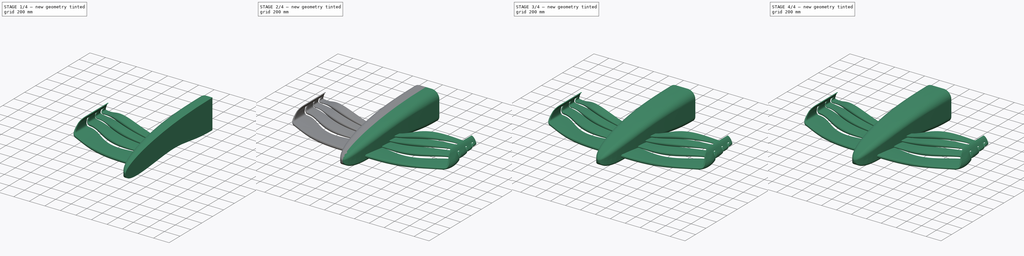
[diagram: build sequence overview — one tinted view per stage of 4, left to right]
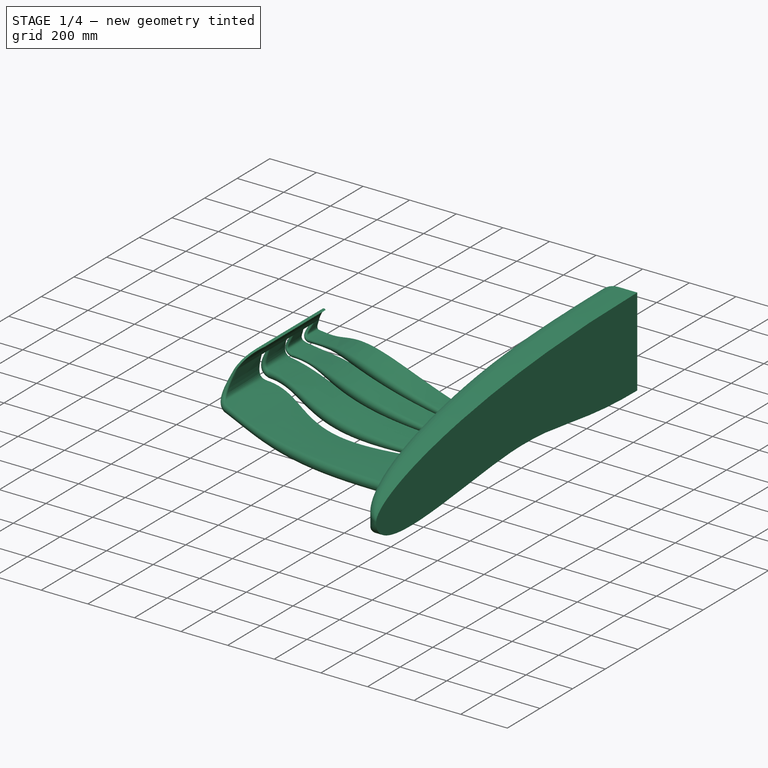
[diagram: stage 1 of 4 — iso view after this stage's code; geometry added in this stage tinted green]
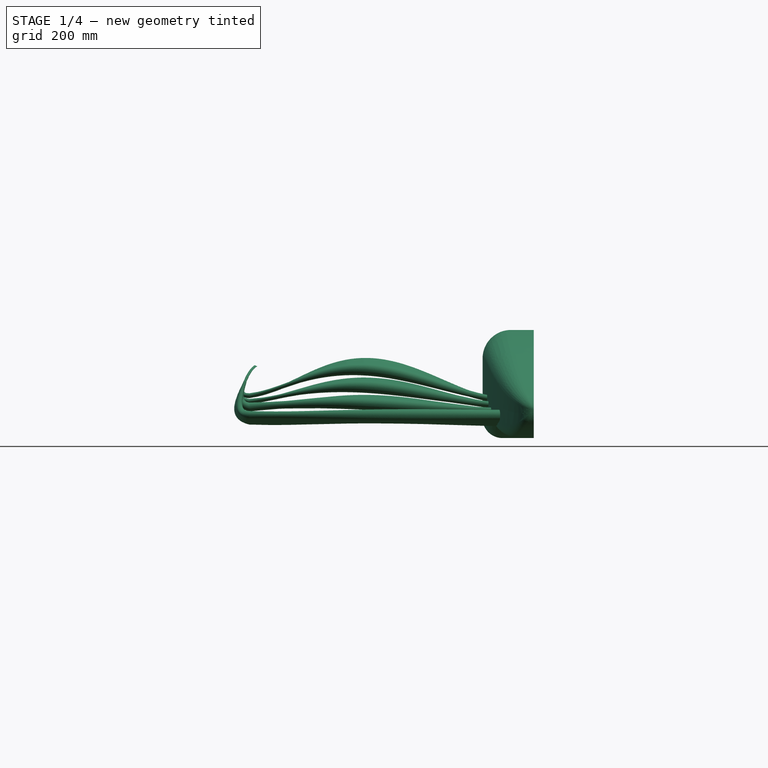
[diagram: stage 1 of 4 — front view after this stage's code; geometry added in this stage tinted green]
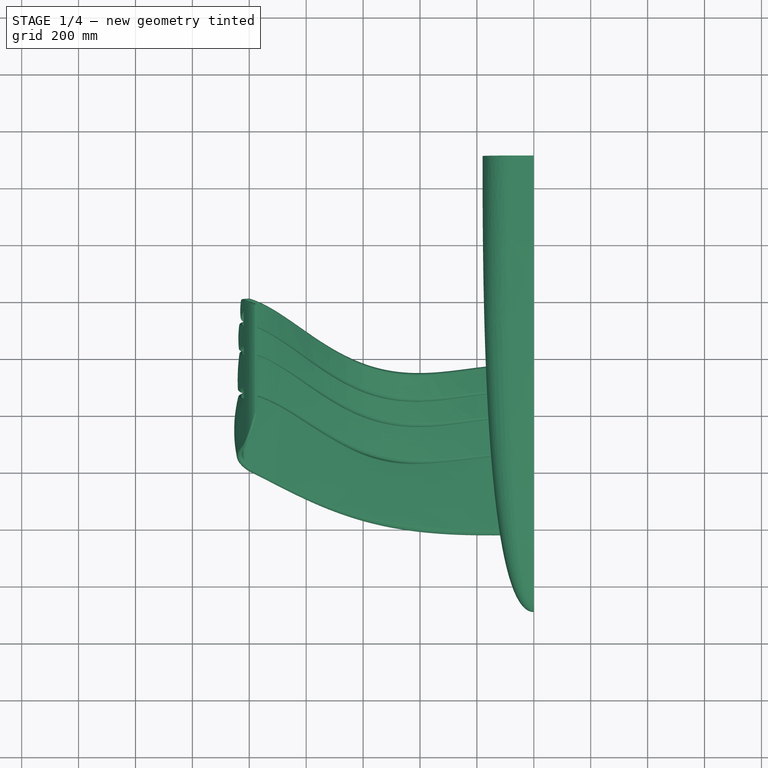
[diagram: stage 1 of 4 — top view after this stage's code; geometry added in this stage tinted green]
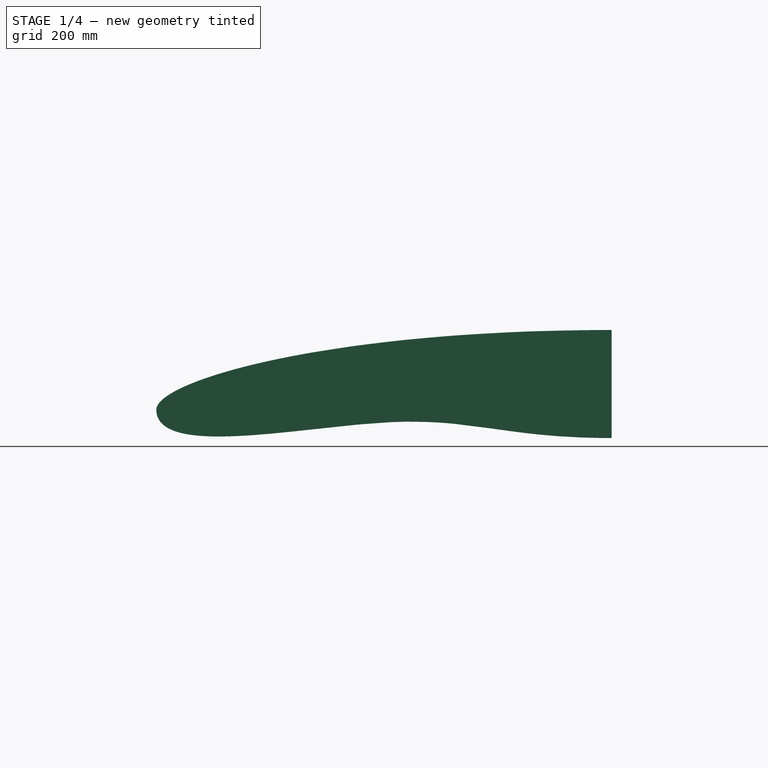
[diagram: stage 1 of 4 — right view after this stage's code; geometry added in this stage tinted green]
FCSTD DOCUMENT  (FreeCAD 1.0R39109 (Git))
Label: Front Wing
License: All rights reserved
LicenseURL: https://en.wikipedia.org/wiki/All_rights_reserved
objects: Sketcher::SketchObject×27, PartDesign::Plane×13, PartDesign::AdditivePipe×4, PartDesign::AdditiveLoft×2, Part::Mirroring×2, PartDesign::Pad×1, PartDesign::Body×1, Part::FeaturePython×1, Part::Feature×1, Part::MultiFuse×1
note: 94 computed .brp shape members not serialized (recipe doc carries the construction recipe); baked Part::Feature solids carry a one-line shape summary decoded from their .brp

FEATURE [Sketcher::SketchObject] Sketch024  label="Top Curve"
  ArcFitTolerance = 1e-06
  AttachmentSupport = -> [YZ_Plane]
  FullyConstrained = true
  MakeInternals = false
  MapMode = 5
  Placement = pos=(0,0,0) rot=(0.57735,0.57735,0.57735;2.0944rad)
  sketch-geometry (7):
    g0-g3: Circle [constr] x4 (B-spline internal-alignment scaffolding for g4; pole/knot coordinates omitted)
    g4: BSplineCurve PolesCount=4 KnotsCount=2 Degree=3 IsPeriodic=0
    g5: GeomPoint [constr] X=-290 Y=20 Z=0
    g6: GeomPoint [constr] X=1310 Y=300 Z=0
  constraints (15):
    c: Weight(g0) = 1
    c: Equal(g0,g1)
    c: Equal(g0,g2)
    c: Equal(g0,g3)
    c: InternalAlignment(g0-g3 -> g4) x4
    c: InternalAlignment(g5,g4)
    c: InternalAlignment(g6,g4)
    c: Distance(g4,g-2) = 290
    c: DistanceY(g4,g1) = 100
    c: DistanceY(g-1,g4) = 20
    c: DistanceX(g4,g2) = 600
    c: DistanceY(g-1,g4) = 300
    c: DistanceX(g4,g4) = 1600
    c: DistanceY(g-1,g2) = 300
    c: Vertical(g1,g4)
FEATURE [Sketcher::SketchObject] Sketch025  label="Bottom Curve"
  ArcFitTolerance = 1e-06
  AttachmentSupport = -> [YZ_Plane]
  ExternalGeometry = -> [Sketch024]
  FullyConstrained = true
  MakeInternals = false
  MapMode = 5
  Placement = pos=(0,0,0) rot=(0.57735,0.57735,0.57735;2.0944rad)
  sketch-geometry (9):
    g0-g4: Circle [constr] x5 (B-spline internal-alignment scaffolding for g5; pole/knot coordinates omitted)
    g5: BSplineCurve PolesCount=5 KnotsCount=3 Degree=3 IsPeriodic=0
    g6: GeomPoint [constr] X=-290 Y=20 Z=0
    g7: GeomPoint [constr] X=515 Y=-25 Z=0
    g8: GeomPoint [constr] X=1310 Y=-80 Z=0
  constraints (15):
    c: Weight(g0) = 1
    c: Equal(g0, g1-g4) x4
    c: InternalAlignment(g0-g4 -> g5) x5
    c: InternalAlignment(g6,g5)
    c: InternalAlignment(g7,g5)
    c: InternalAlignment(g8,g5)
    c: Vertical(g-4,g5)
    c: Coincident(g-3,g5)
    c: DistanceX(g3,g5) = 380
    c: DistanceY(g5,g-1) = 80
    c: Horizontal(g3,g5)
    c: DistanceY(g-1,g2) = 65
    c: DistanceX(g5,g2) = 1000
    c: DistanceY(g7,g-1) = 25
    c: Vertical(g1,g5)
FEATURE [Sketcher::SketchObject] Sketch026  label="Straight Reference"
  ArcFitTolerance = 1e-06
  AttachmentSupport = -> [YZ_Plane]
  ExternalGeometry = -> [Sketch024]
  FullyConstrained = true
  MakeInternals = false
  MapMode = 5
  Placement = pos=(0,0,0) rot=(0.57735,0.57735,0.57735;2.0944rad)
  sketch-geometry (1):
    g0: LineSegment StartX=-290 StartY=20 StartZ=0 EndX=1310 EndY=20 EndZ=0
  constraints (3):
    c: Coincident(g0,g-3)
    c: Horizontal(g0)
    c: Vertical(g-4,g0)
FEATURE [PartDesign::Plane] DatumPlane012  label="Plane L"
  AttachmentSupport = -> [Sketch024]
  Length = 1340.69
  MapMode = 1
  Placement = pos=(0,-290,20) rot=(0,0,1;0rad)
  ResizeMode = 0
  Width = 1862.67
FEATURE [Sketcher::SketchObject] Sketch027
  ArcFitTolerance = 1e-06
  AttachmentSupport = -> [DatumPlane012]
  ExternalGeometry = -> [Sketch026]
  FullyConstrained = true
  MakeInternals = false
  MapMode = 5
  Placement = pos=(0,-290,20) rot=(0,0,1;0rad)
  sketch-geometry (7):
    g0-g3: Circle [constr] x4 (B-spline internal-alignment scaffolding for g4; pole/knot coordinates omitted)
    g4: BSplineCurve PolesCount=4 KnotsCount=2 Degree=3 IsPeriodic=0
    g5: GeomPoint [constr] X=1.8e-15 Y=0 Z=0
    g6: GeomPoint [constr] X=180 Y=1600 Z=0
  constraints (14):
    c: Weight(g0) = 1
    c: Equal(g0,g1)
    c: Equal(g0,g2)
    c: Equal(g0,g3)
    c: InternalAlignment(g0-g3 -> g4) x4
    c: InternalAlignment(g5,g4)
    c: InternalAlignment(g6,g4)
    c: Coincident(g0,g-1)
    c: Horizontal(g4,g1)
    c: Vertical(g4,g2)
    c: Vertical(g1,g2)
    c: Horizontal(g-3,g4)
    c: DistanceX(g4,g1) = 180
    c: DistanceY(g-1,g2) = 1200
FEATURE [PartDesign::Plane] DatumPlane013  label="Plane M"
  AttachmentSupport = -> [Sketch026]
  Length = 1206.04
  MapMode = 7
  Placement = pos=(0,1310,20) rot=(1,0,0;1.5708rad)
  ResizeMode = 0
  Width = 508.008
FEATURE [Sketcher::SketchObject] Sketch028  label="Nose Profile Back"
  ArcFitTolerance = 1e-06
  AttachmentSupport = -> [DatumPlane013]
  ExternalGeometry = -> [Sketch024,Sketch027,Sketch025]
  FullyConstrained = true
  MakeInternals = false
  MapMode = 5
  Placement = pos=(0,1310,20) rot=(1,0,0;1.5708rad)
  sketch-geometry (6):
    g0: LineSegment StartX=0 StartY=-100 StartZ=0 EndX=110 EndY=-100 EndZ=0
    g1: LineSegment StartX=0 StartY=280 StartZ=0 EndX=80 EndY=280 EndZ=0
    g2: ArcOfCircle CenterX=80 CenterY=180 CenterZ=0 NormalX=0 NormalY=0 NormalZ=1 AngleXU=0 Radius=100 StartAngle=1.01e-13 EndAngle=1.5708
    g3: ArcOfCircle CenterX=110 CenterY=-30 CenterZ=0 NormalX=0 NormalY=0 NormalZ=1 AngleXU=0 Radius=70 StartAngle=4.71239 EndAngle=6.28319
    g4: LineSegment StartX=180 StartY=180 StartZ=0 EndX=180 EndY=-30 EndZ=0
    g5: LineSegment StartX=0 StartY=280 StartZ=0 EndX=0 EndY=-100 EndZ=0
  constraints (14):
    c: Coincident(g0,g-5)
    c: Horizontal(g0)
    c: Coincident(g1,g-3)
    c: Horizontal(g1)
    c: Tangent(g3,g0) = -1.5708
    c: Tangent(g2,g1) = 1.5708
    c: Vertical(g2,g3)
    c: PointOnObject(g-4,g4)
    c: Radius(g3) = 70
    c: Radius(g2) = 100
    c: Tangent(g4,g3) = 1.5708
    c: Tangent(g4,g2) = 1.5708
    c: Coincident(g5,g1)
    c: Coincident(g5,g0)
FEATURE [PartDesign::Body] Body
  AllowCompound = true
  Group = -> [DatumPlane,DatumPlane001,DatumPlane003,DatumPlane004,Sketch,Sketch001,Sketch002,Sketch003,Sketch004,AdditiveLoft,Sketch006,Pad,Sketch007,DatumPlane005,DatumPlane006,DatumPlane007,Sketch008,Sketch009,Sketch010,Sketch011,DatumPlane008,DatumPlane009,DatumPlane010,DatumPlane011,Sketch012,Sketch013,Sketch014,Sketch016,Sketch017,Sketch018,Sketch019,Sketch020,AdditivePipe,AdditivePipe001,AdditivePipe002,+12 more]
  Origin = -> Origin
  Tip = -> AdditiveLoft001
FEATURE [Part::FeaturePython] CurvedPathArray  # WARN: FeaturePython — macro-defined, semantics opaque (R4)
  Base = -> Sketch028
  Hullcurves = -> [Sketch024,Sketch027,Sketch025]
  Items = 50
  LoftMaxDegree = 50
  MaxLoftSize = 16
  OffsetEnd = 0.1
  OffsetStart = 0.1
  Path = -> Sketch026
  ScaleX = true
  ScaleY = true
  ScaleZ = true
  Solid = true
  Surface = false
  Twist = 0
FEATURE [Part::Feature] AdditiveLoft002
  Placement = pos=(0,0,0) rot=(0.57735,0.57735,0.57735;2.0944rad)
  shape: bbox 1055 x 858 x 569.9 mm, 49 faces (baked)
FEATURE [Part::Mirroring] Part__Mirroring  label="CurvedPathArray (Mirror #1)"
  Base = (0,0,0)
  Normal = (1,0,0)
  Source = -> CurvedPathArray
FEATURE [Part::Mirroring] Part__Mirroring001  label="AdditiveLoft002 (Mirror #2)"
  Base = (0,0,0)
  Normal = (1,0,0)
  Source = -> AdditiveLoft002
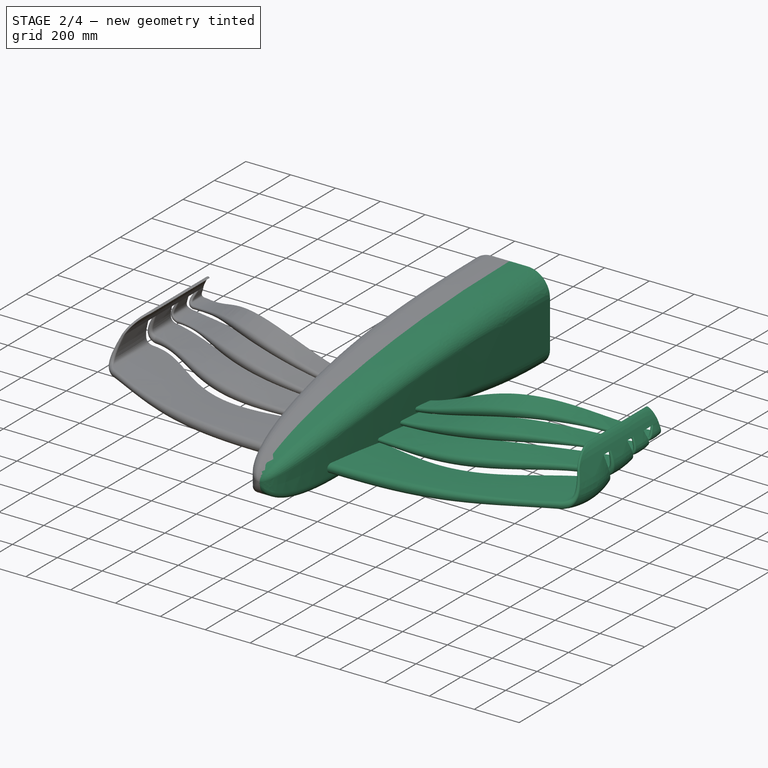
[diagram: stage 2 of 4 — iso view after this stage's code; geometry added in this stage tinted green]
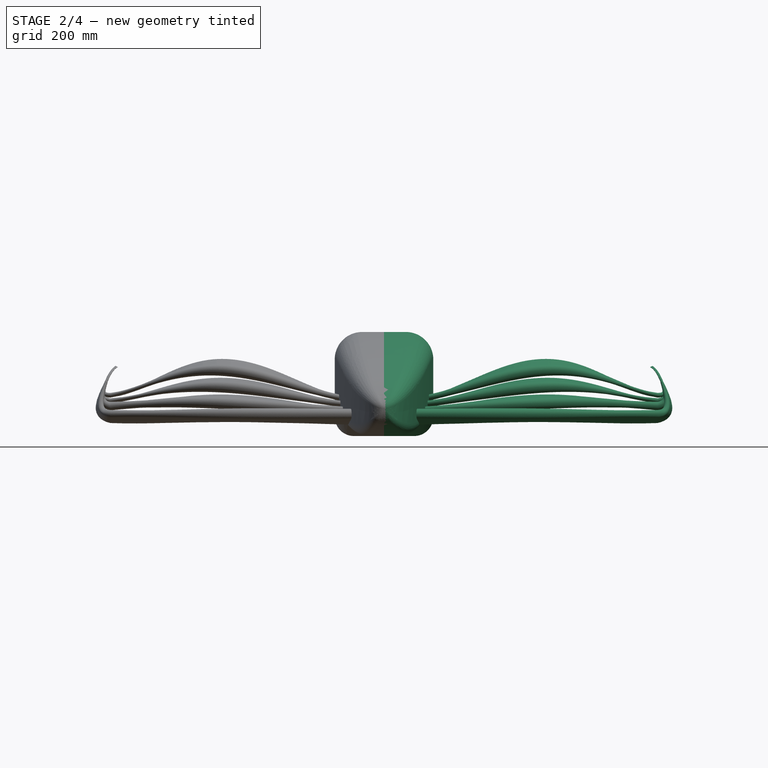
[diagram: stage 2 of 4 — front view after this stage's code; geometry added in this stage tinted green]
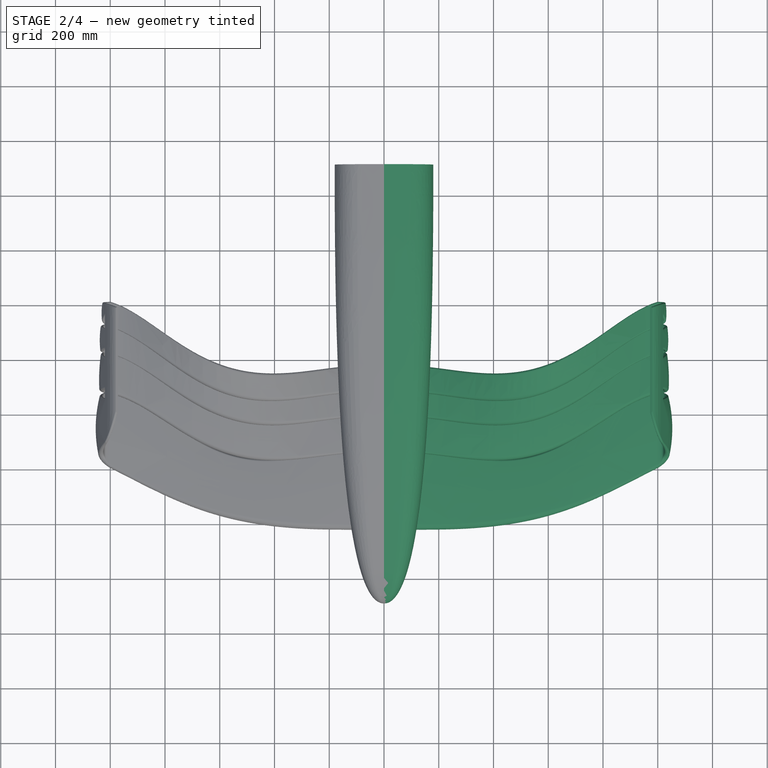
[diagram: stage 2 of 4 — top view after this stage's code; geometry added in this stage tinted green]
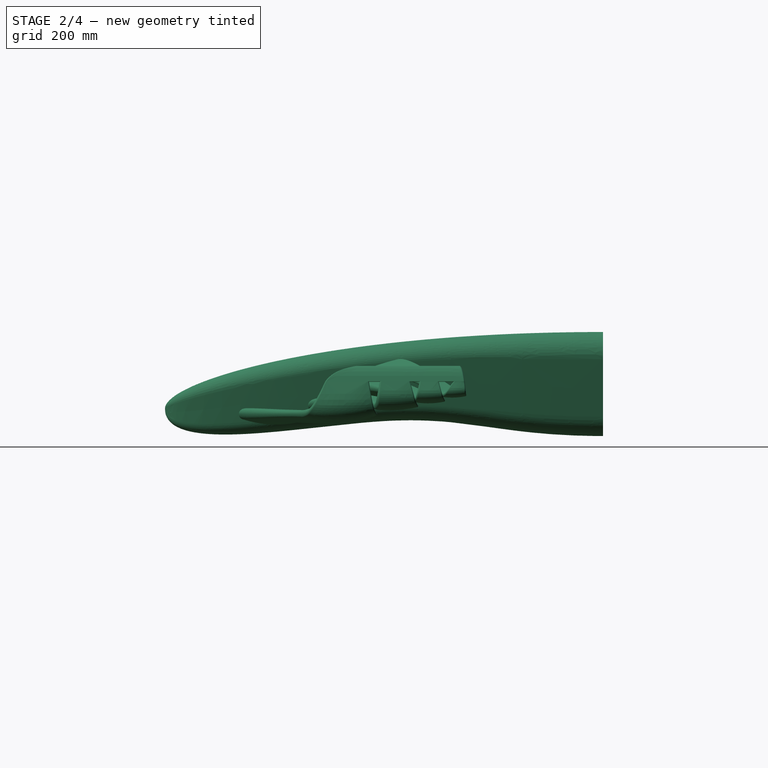
[diagram: stage 2 of 4 — right view after this stage's code; geometry added in this stage tinted green]
FEATURE [PartDesign::Plane] DatumPlane  label="Plane A"
  AttachmentOffset = pos=(0,0,200) rot=(0,0,1;0rad)
  AttachmentSupport = -> [YZ_Plane]
  Length = 1755.95
  MapMode = 5
  Placement = pos=(200,0,0) rot=(0.57735,0.57735,0.57735;2.0944rad)
  ResizeMode = 0
  Width = 535.949
FEATURE [PartDesign::Plane] DatumPlane001  label="Plane B"
  AttachmentOffset = pos=(0,0,600) rot=(0,0,1;0rad)
  AttachmentSupport = -> [YZ_Plane]
  Length = 1755.95
  MapMode = 5
  Placement = pos=(600,0,0) rot=(0.57735,0.57735,0.57735;2.0944rad)
  ResizeMode = 0
  Width = 535.949
FEATURE [PartDesign::Plane] DatumPlane003  label="Plane D"
  AttachmentOffset = pos=(0,0,1000) rot=(0,0,1;0rad)
  AttachmentSupport = -> [YZ_Plane]
  Length = 1755.95
  MapMode = 5
  Placement = pos=(1000,0,0) rot=(0.57735,0.57735,0.57735;2.0944rad)
  ResizeMode = 0
  Width = 535.949
FEATURE [PartDesign::Plane] DatumPlane004  label="Plane C"
  AttachmentOffset = pos=(0,0,800) rot=(0,0,1;0rad)
  AttachmentSupport = -> [YZ_Plane]
  Length = 1755.95
  MapMode = 5
  Placement = pos=(800,0,0) rot=(0.57735,0.57735,0.57735;2.0944rad)
  ResizeMode = 0
  Width = 535.949
FEATURE [Sketcher::SketchObject] Sketch  label="Sketch-YZ"
  ArcFitTolerance = 1e-06
  AttachmentSupport = -> [YZ_Plane]
  FullyConstrained = false
  MakeInternals = false
  MapMode = 5
  Placement = pos=(0,0,0) rot=(0.57735,0.57735,0.57735;2.0944rad)
  sketch-geometry (19):
    g0: ArcOfCircle CenterX=260 CenterY=0 CenterZ=0 NormalX=0 NormalY=0 NormalZ=1 AngleXU=0 Radius=7.5 StartAngle=5.10059 EndAngle=7.7537
    g1: ArcOfCircle CenterX=0 CenterY=0 CenterZ=0 NormalX=0 NormalY=0 NormalZ=1 AngleXU=0 Radius=20 StartAngle=1.57502 EndAngle=4.41478
    g2: ArcOfCircle CenterX=10.4688 CenterY=-2479.98 CenterZ=0 NormalX=0 NormalY=0 NormalZ=1 AngleXU=0 Radius=2500 StartAngle=1.47052 EndAngle=1.57502
    g3: ArcOfCircle CenterX=111.43 CenterY=363.295 CenterZ=0 NormalX=0 NormalY=0 NormalZ=1 AngleXU=0 Radius=400 StartAngle=4.41478 EndAngle=5.10059
    g4: ArcOfCircle CenterX=260.671 CenterY=20 CenterZ=0 NormalX=0 NormalY=0 NormalZ=1 AngleXU=0 Radius=10 StartAngle=1.62365 EndAngle=4.58711
    g5: ArcOfCircle CenterX=400.671 CenterY=20 CenterZ=0 NormalX=0 NormalY=0 NormalZ=1 AngleXU=0 Radius=7.5 StartAngle=4.87302 EndAngle=7.7655
    g6: LineSegment [constr] StartX=390.671 StartY=45 StartZ=0 EndX=490.671 EndY=45 EndZ=0
    g7: LineSegment [constr] StartX=480.671 StartY=70 StartZ=0 EndX=560.671 EndY=70 EndZ=0
    g8: ArcOfCircle CenterX=390.671 CenterY=45 CenterZ=0 NormalX=0 NormalY=0 NormalZ=1 AngleXU=0 Radius=10 StartAngle=1.59627 EndAngle=4.56454
    g9: ArcOfCircle CenterX=490.671 CenterY=45 CenterZ=0 NormalX=0 NormalY=0 NormalZ=1 AngleXU=0 Radius=7.5 StartAngle=4.9095 EndAngle=7.77856
    g10: ArcOfCircle CenterX=480.671 CenterY=70 CenterZ=0 NormalX=0 NormalY=0 NormalZ=1 AngleXU=0 Radius=10 StartAngle=1.57991 EndAngle=4.57672
    g11: ArcOfCircle CenterX=560.671 CenterY=70 CenterZ=0 NormalX=0 NormalY=0 NormalZ=1 AngleXU=0 Radius=7.5 StartAngle=4.9097 EndAngle=7.78241
    g12: LineSegment [constr] StartX=260.671 StartY=20 StartZ=0 EndX=400.671 EndY=20 EndZ=0
    g13: ArcOfCircle CenterX=312.97 CenterY=-968.618 CenterZ=0 NormalX=0 NormalY=0 NormalZ=1 AngleXU=0 Radius=1000 StartAngle=1.48232 EndAngle=1.62365
    g14: ArcOfCircle CenterX=321.898 CenterY=506.16 CenterZ=0 NormalX=0 NormalY=0 NormalZ=1 AngleXU=0 Radius=500 StartAngle=4.58711 EndAngle=4.87302
    g15: ArcOfCircle CenterX=415.889 CenterY=-944.679 CenterZ=0 NormalX=0 NormalY=0 NormalZ=1 AngleXU=0 Radius=1000 StartAngle=1.49538 EndAngle=1.59627
    g16: ArcOfCircle CenterX=433.389 CenterY=331.836 CenterZ=0 NormalX=0 NormalY=0 NormalZ=1 AngleXU=0 Radius=300 StartAngle=4.56454 EndAngle=4.9095
    g17: ArcOfCircle CenterX=489.694 CenterY=-919.959 CenterZ=0 NormalX=0 NormalY=0 NormalZ=1 AngleXU=0 Radius=1000 StartAngle=1.49922 EndAngle=1.57991
    g18: ArcOfCircle CenterX=513.131 CenterY=307.795 CenterZ=0 NormalX=0 NormalY=0 NormalZ=1 AngleXU=0 Radius=250 StartAngle=4.57672 EndAngle=4.9097
  constraints (53):
    c: Diameter(g0) = 15
    c: Diameter(g1) = 40
    c: Radius(g2) = 2500
    c: Radius(g3) = 400
    c: PointOnObject(g0,g-1)
    c: PointOnObject(g1,g-1)
    c: PointOnObject(g1,g-2)
    c: DistanceX(g-1,g0) = 260
    c: Tangent(g1,g3) = -1.5708
    c: Tangent(g1,g2) = -1.5708
    c: Tangent(g0,g2) = -1.5708
    c: Tangent(g0,g3) = -1.5708
    c: Horizontal(g6)
    c: Horizontal(g7)
    c: Coincident(g8,g6)
    c: Coincident(g9,g6)
    c: Coincident(g10,g7)
    c: Coincident(g11,g7)
    c: Coincident(g12,g4)
    c: Coincident(g12,g5)
    c: Horizontal(g12)
    c: Diameter(g4) = 20
    c: Diameter(g5) = 15
    c: Radius(g13) = 1000
    c: Radius(g14) = 500
    c: DistanceY(g0,g4) = 20
    c: DistanceX(g12,g12) = 140
    c: Tangent(g4,g13) = -1.5708
    c: Tangent(g4,g14) = -1.5708
    c: Tangent(g5,g13) = -1.5708
    c: Tangent(g5,g14) = -1.5708
    c: Diameter(g8) = 20
    c: Diameter(g9) = 15
    c: Diameter(g10) = 20
    c: Diameter(g11) = 15
    c: DistanceX(g6,g6) = 100
    c: DistanceX(g7,g7) = 80
    c: Radius(g16) = 300
    c: Radius(g15) = 1000
    c: Radius(g17) = 1000
    c: Radius(g18) = 250
    c: Distance(g12,g6) = 25
    c: DistanceX(g6,g5) = 10
    c: DistanceY(g6,g7) = 25
    c: DistanceX(g7,g6) = 10
    c: Tangent(g8,g16) = -1.5708
    c: Tangent(g8,g15) = -1.5708
    c: Tangent(g9,g15) = -1.5708
    c: Tangent(g9,g16) = -1.5708
    c: Tangent(g10,g17) = -1.5708
    c: Tangent(g10,g18) = -1.5708
    c: Tangent(g11,g17) = -1.5708
    c: Tangent(g11,g18) = -1.5708
FEATURE [Sketcher::SketchObject] Sketch001  label="Sketch-A"
  ArcFitTolerance = 1e-06
  AttachmentSupport = -> [DatumPlane]
  FullyConstrained = false
  MakeInternals = false
  MapMode = 5
  Placement = pos=(200,0,0) rot=(0.57735,0.57735,0.57735;2.0944rad)
  sketch-geometry (19):
    g0: ArcOfCircle CenterX=260 CenterY=0 CenterZ=0 NormalX=0 NormalY=0 NormalZ=1 AngleXU=0 Radius=7.5 StartAngle=5.10059 EndAngle=7.7537
    g1: ArcOfCircle CenterX=0 CenterY=0 CenterZ=0 NormalX=0 NormalY=0 NormalZ=1 AngleXU=0 Radius=20 StartAngle=1.57502 EndAngle=4.41478
    g2: ArcOfCircle CenterX=10.4688 CenterY=-2479.98 CenterZ=0 NormalX=0 NormalY=0 NormalZ=1 AngleXU=0 Radius=2500 StartAngle=1.47052 EndAngle=1.57502
    g3: ArcOfCircle CenterX=111.43 CenterY=363.295 CenterZ=0 NormalX=0 NormalY=0 NormalZ=1 AngleXU=0 Radius=400 StartAngle=4.41478 EndAngle=5.10059
    g4: ArcOfCircle CenterX=260.67 CenterY=20 CenterZ=0 NormalX=0 NormalY=0 NormalZ=1 AngleXU=0 Radius=10 StartAngle=1.62365 EndAngle=4.58711
    g5: ArcOfCircle CenterX=400.67 CenterY=20 CenterZ=0 NormalX=0 NormalY=0 NormalZ=1 AngleXU=0 Radius=7.5 StartAngle=4.87302 EndAngle=7.7655
    g6: LineSegment [constr] StartX=390.67 StartY=45 StartZ=0 EndX=490.67 EndY=45 EndZ=0
    g7: LineSegment [constr] StartX=480.67 StartY=70 StartZ=0 EndX=560.67 EndY=70 EndZ=0
    g8: ArcOfCircle CenterX=390.67 CenterY=45 CenterZ=0 NormalX=0 NormalY=0 NormalZ=1 AngleXU=0 Radius=10 StartAngle=1.59627 EndAngle=4.56454
    g9: ArcOfCircle CenterX=490.67 CenterY=45 CenterZ=0 NormalX=0 NormalY=0 NormalZ=1 AngleXU=0 Radius=7.5 StartAngle=4.9095 EndAngle=7.77856
    g10: ArcOfCircle CenterX=480.67 CenterY=70 CenterZ=0 NormalX=0 NormalY=0 NormalZ=1 AngleXU=0 Radius=10 StartAngle=1.57991 EndAngle=4.57672
    g11: ArcOfCircle CenterX=560.67 CenterY=70 CenterZ=0 NormalX=0 NormalY=0 NormalZ=1 AngleXU=0 Radius=7.5 StartAngle=4.9097 EndAngle=7.78241
    g12: LineSegment [constr] StartX=260.67 StartY=20 StartZ=0 EndX=400.67 EndY=20 EndZ=0
    g13: ArcOfCircle CenterX=312.97 CenterY=-968.618 CenterZ=0 NormalX=0 NormalY=0 NormalZ=1 AngleXU=0 Radius=1000 StartAngle=1.48232 EndAngle=1.62365
    g14: ArcOfCircle CenterX=321.898 CenterY=506.16 CenterZ=0 NormalX=0 NormalY=0 NormalZ=1 AngleXU=0 Radius=500 StartAngle=4.58711 EndAngle=4.87302
    g15: ArcOfCircle CenterX=415.889 CenterY=-944.679 CenterZ=0 NormalX=0 NormalY=0 NormalZ=1 AngleXU=0 Radius=1000 StartAngle=1.49538 EndAngle=1.59627
    g16: ArcOfCircle CenterX=433.389 CenterY=331.836 CenterZ=0 NormalX=0 NormalY=0 NormalZ=1 AngleXU=0 Radius=300 StartAngle=4.56454 EndAngle=4.9095
    g17: ArcOfCircle CenterX=489.694 CenterY=-919.959 CenterZ=0 NormalX=0 NormalY=0 NormalZ=1 AngleXU=0 Radius=1000 StartAngle=1.49922 EndAngle=1.57991
    g18: ArcOfCircle CenterX=513.131 CenterY=307.795 CenterZ=0 NormalX=0 NormalY=0 NormalZ=1 AngleXU=0 Radius=250 StartAngle=4.57672 EndAngle=4.9097
  constraints (53):
    c: Diameter(g0) = 15
    c: Diameter(g1) = 40
    c: Radius(g2) = 2500
    c: Radius(g3) = 400
    c: PointOnObject(g0,g-1)
    c: PointOnObject(g1,g-1)
    c: PointOnObject(g1,g-2)
    c: DistanceX(g-1,g0) = 260
    c: Tangent(g1,g3) = -1.5708
    c: Tangent(g1,g2) = -1.5708
    c: Tangent(g0,g2) = -1.5708
    c: Tangent(g0,g3) = -1.5708
    c: Horizontal(g6)
    c: Horizontal(g7)
    c: Coincident(g8,g6)
    c: Coincident(g9,g6)
    c: Coincident(g10,g7)
    c: Coincident(g11,g7)
    c: Coincident(g12,g4)
    c: Coincident(g12,g5)
    c: Horizontal(g12)
    c: Diameter(g4) = 20
    c: Diameter(g5) = 15
    c: Radius(g13) = 1000
    c: Radius(g14) = 500
    c: DistanceY(g0,g4) = 20
    c: DistanceX(g12,g12) = 140
    c: Tangent(g4,g13) = -1.5708
    c: Tangent(g4,g14) = -1.5708
    c: Tangent(g5,g13) = -1.5708
    c: Tangent(g5,g14) = -1.5708
    c: Diameter(g8) = 20
    c: Diameter(g9) = 15
    c: Diameter(g10) = 20
    c: Diameter(g11) = 15
    c: DistanceX(g6,g6) = 100
    c: DistanceX(g7,g7) = 80
    c: Radius(g16) = 300
    c: Radius(g15) = 1000
    c: Radius(g17) = 1000
    c: Radius(g18) = 250
    c: Distance(g12,g6) = 25
    c: DistanceX(g6,g5) = 10
    c: DistanceY(g6,g7) = 25
    c: DistanceX(g7,g6) = 10
    c: Tangent(g8,g16) = -1.5708
    c: Tangent(g8,g15) = -1.5708
    c: Tangent(g9,g15) = -1.5708
    c: Tangent(g9,g16) = -1.5708
    c: Tangent(g10,g17) = -1.5708
    c: Tangent(g10,g18) = -1.5708
    c: Tangent(g11,g17) = -1.5708
    c: Tangent(g11,g18) = -1.5708
FEATURE [Sketcher::SketchObject] Sketch002  label="Sketch-B"
  ArcFitTolerance = 1e-06
  AttachmentSupport = -> [DatumPlane001]
  FullyConstrained = false
  MakeInternals = false
  MapMode = 5
  Placement = pos=(600,0,0) rot=(0.57735,0.57735,0.57735;2.0944rad)
  sketch-geometry (19):
    g0: ArcOfCircle CenterX=260 CenterY=0 CenterZ=0 NormalX=0 NormalY=0 NormalZ=1 AngleXU=0 Radius=7.5 StartAngle=5.04456 EndAngle=7.75231
    g1: ArcOfCircle CenterX=50 CenterY=0 CenterZ=0 NormalX=0 NormalY=0 NormalZ=1 AngleXU=0 Radius=20 StartAngle=1.55346 EndAngle=4.49486
    g2: ArcOfCircle CenterX=7.00893 CenterY=-2479.63 CenterZ=0 NormalX=0 NormalY=0 NormalZ=1 AngleXU=0 Radius=2500 StartAngle=1.46912 EndAngle=1.55346
    g3: ArcOfCircle CenterX=132.009 CenterY=371.045 CenterZ=0 NormalX=0 NormalY=0 NormalZ=1 AngleXU=0 Radius=400 StartAngle=4.49486 EndAngle=5.04456
    g4: ArcOfCircle CenterX=286.129 CenterY=40 CenterZ=0 NormalX=0 NormalY=0 NormalZ=1 AngleXU=0 Radius=20 StartAngle=1.7269 EndAngle=4.83151
    g5: ArcOfCircle CenterX=424.002 CenterY=64.3107 CenterZ=0 NormalX=0 NormalY=0 NormalZ=1 AngleXU=0 Radius=7.5 StartAngle=5.11929 EndAngle=7.86858
    g6: LineSegment [constr] StartX=414.002 StartY=99.3107 StartZ=0 EndX=510.595 EndY=125.193 EndZ=0
    g7: LineSegment [constr] StartX=500.595 StartY=160.193 StartZ=0 EndX=573.1 EndY=194.002 EndZ=0
    g8: ArcOfCircle CenterX=414.002 CenterY=99.3107 CenterZ=0 NormalX=0 NormalY=0 NormalZ=1 AngleXU=0 Radius=20 StartAngle=1.75775 EndAngle=4.92339
    g9: ArcOfCircle CenterX=510.595 CenterY=125.193 CenterZ=0 NormalX=0 NormalY=0 NormalZ=1 AngleXU=0 Radius=7.5 StartAngle=5.27183 EndAngle=7.94029
    g10: ArcOfCircle CenterX=500.595 CenterY=160.193 CenterZ=0 NormalX=0 NormalY=0 NormalZ=1 AngleXU=0 Radius=20 StartAngle=1.89043 EndAngle=5.1353
    g11: ArcOfCircle CenterX=573.1 CenterY=194.002 CenterZ=0 NormalX=0 NormalY=0 NormalZ=1 AngleXU=0 Radius=7.5 StartAngle=5.47147 EndAngle=8.09348
    g12: LineSegment [constr] StartX=286.129 StartY=40 StartZ=0 EndX=424.002 EndY=64.3107 EndZ=0
    g13: ArcOfCircle CenterX=438.492 CenterY=-928.083 CenterZ=0 NormalX=0 NormalY=0 NormalZ=1 AngleXU=0 Radius=1000 StartAngle=1.5854 EndAngle=1.7269
    g14: ArcOfCircle CenterX=229.087 CenterY=516.599 CenterZ=0 NormalX=0 NormalY=0 NormalZ=1 AngleXU=0 Radius=500 StartAngle=4.83151 EndAngle=5.11929
    g15: ArcOfCircle CenterX=596.151 CenterY=-863.613 CenterZ=0 NormalX=0 NormalY=0 NormalZ=1 AngleXU=0 Radius=1000 StartAngle=1.65711 EndAngle=1.75775
    g16: ArcOfCircle CenterX=355.361 CenterY=373.101 CenterZ=0 NormalX=0 NormalY=0 NormalZ=1 AngleXU=0 Radius=300 StartAngle=4.92339 EndAngle=5.27183
    g17: ArcOfCircle CenterX=808.533 CenterY=-770.17 CenterZ=0 NormalX=0 NormalY=0 NormalZ=1 AngleXU=0 Radius=1000 StartAngle=1.81029 EndAngle=1.89043
    g18: ArcOfCircle CenterX=406.198 CenterY=369.929 CenterZ=0 NormalX=0 NormalY=0 NormalZ=1 AngleXU=0 Radius=250 StartAngle=5.1353 EndAngle=5.47147
  constraints (53):
    c: Diameter(g0) = 15
    c: Diameter(g1) = 40
    c: Radius(g2) = 2500
    c: Radius(g3) = 400
    c: PointOnObject(g0,g-1)
    c: DistanceX(g-1,g0) = 260
    c: Tangent(g1,g3) = -1.5708
    c: Tangent(g1,g2) = -1.5708
    c: Tangent(g0,g2) = -1.5708
    c: Tangent(g0,g3) = -1.5708
    c: Coincident(g8,g6)
    c: Coincident(g9,g6)
    c: Coincident(g10,g7)
    c: Coincident(g11,g7)
    c: Coincident(g12,g4)
    c: Coincident(g12,g5)
    c: Diameter(g4) = 40
    c: Diameter(g5) = 15
    c: Radius(g13) = 1000
    c: Radius(g14) = 500
    c: Tangent(g4,g13) = -1.5708
    c: Tangent(g4,g14) = -1.5708
    c: Tangent(g5,g13) = -1.5708
    c: Tangent(g5,g14) = -1.5708
    c: Diameter(g8) = 40
    c: Diameter(g9) = 15
    c: Diameter(g10) = 40
    c: Diameter(g11) = 15
    c: Radius(g16) = 300
    c: Radius(g15) = 1000
    c: Radius(g17) = 1000
    c: Radius(g18) = 250
    c: DistanceX(g6,g5) = 10
    c: DistanceX(g7,g6) = 10
    c: Tangent(g8,g16) = -1.5708
    c: Tangent(g8,g15) = -1.5708
    c: Tangent(g9,g15) = -1.5708
    c: Tangent(g9,g16) = -1.5708
    c: Tangent(g10,g17) = -1.5708
    c: Tangent(g10,g18) = -1.5708
    c: Tangent(g11,g17) = -1.5708
    c: Tangent(g11,g18) = -1.5708
    c: PointOnObject(g1,g-1)
    c: DistanceX(g-1,g1) = 50
    c: Angle(g-1,g12) = 0.174533
    c: Angle(g-1,g6) = 0.261799
    c: Angle(g-1,g7) = 0.436332
    c: Distance(g4,g-1) = 40
    c: DistanceY(g5,g6) = 35
    c: DistanceY(g6,g7) = 35
    c: Distance(g12,g12) = 140
    c: Distance(g6,g6) = 100
    c: Distance(g7,g7) = 80
FEATURE [Sketcher::SketchObject] Sketch003  label="Sketch-C"
  ArcFitTolerance = 1e-06
  AttachmentSupport = -> [DatumPlane004]
  FullyConstrained = true
  MakeInternals = false
  MapMode = 5
  Placement = pos=(800,0,0) rot=(0.57735,0.57735,0.57735;2.0944rad)
  sketch-geometry (19):
    g0: ArcOfCircle CenterX=380 CenterY=0 CenterZ=0 NormalX=0 NormalY=0 NormalZ=1 AngleXU=0 Radius=5 StartAngle=5.08827 EndAngle=7.76337
    g1: ArcOfCircle CenterX=120 CenterY=0 CenterZ=0 NormalX=0 NormalY=0 NormalZ=1 AngleXU=0 Radius=15 StartAngle=1.58457 EndAngle=4.40906
    g2: ArcOfCircle CenterX=154.231 CenterY=-2484.76 CenterZ=0 NormalX=0 NormalY=0 NormalZ=1 AngleXU=0 Radius=2500 StartAngle=1.48018 EndAngle=1.58457
    g3: ArcOfCircle CenterX=235 CenterY=367.423 CenterZ=0 NormalX=0 NormalY=0 NormalZ=1 AngleXU=0 Radius=400 StartAngle=4.40906 EndAngle=5.08827
    g4: ArcOfCircle CenterX=390 CenterY=40 CenterZ=0 NormalX=0 NormalY=0 NormalZ=1 AngleXU=0 Radius=15 StartAngle=1.63988 EndAngle=4.70997
    g5: ArcOfCircle CenterX=529.659 CenterY=49.7659 CenterZ=0 NormalX=0 NormalY=0 NormalZ=1 AngleXU=0 Radius=5 StartAngle=4.99595 EndAngle=7.7819
    g6: LineSegment [constr] StartX=519.659 StartY=84.7659 StartZ=0 EndX=619.111 EndY=95.2188 EndZ=0
    g7: LineSegment [constr] StartX=609.111 StartY=130.219 StartZ=0 EndX=688.333 EndY=141.353 EndZ=0
    g8: ArcOfCircle CenterX=519.659 CenterY=84.7659 CenterZ=0 NormalX=0 NormalY=0 NormalZ=1 AngleXU=0 Radius=10 StartAngle=1.67589 EndAngle=4.69482
    g9: ArcOfCircle CenterX=619.111 CenterY=95.2188 CenterZ=0 NormalX=0 NormalY=0 NormalZ=1 AngleXU=0 Radius=5 StartAngle=5.03797 EndAngle=7.85841
    g10: ArcOfCircle CenterX=609.111 CenterY=130.219 CenterZ=0 NormalX=0 NormalY=0 NormalZ=1 AngleXU=0 Radius=10 StartAngle=1.68817 EndAngle=4.74831
    g11: ArcOfCircle CenterX=688.333 CenterY=141.353 CenterZ=0 NormalX=0 NormalY=0 NormalZ=1 AngleXU=0 Radius=5 StartAngle=5.07909 EndAngle=7.89088
    g12: LineSegment [constr] StartX=390 StartY=40 StartZ=0 EndX=529.659 EndY=49.7659 EndZ=0
    g13: ArcOfCircle CenterX=457.998 CenterY=-942.65 CenterZ=0 NormalX=0 NormalY=0 NormalZ=1 AngleXU=0 Radius=1000 StartAngle=1.49871 EndAngle=1.63988
    g14: ArcOfCircle CenterX=391.171 CenterY=524.999 CenterZ=0 NormalX=0 NormalY=0 NormalZ=1 AngleXU=0 Radius=500 StartAngle=4.70997 EndAngle=4.99595
    g15: ArcOfCircle CenterX=623.515 CenterY=-899.772 CenterZ=0 NormalX=0 NormalY=0 NormalZ=1 AngleXU=0 Radius=1000 StartAngle=1.57522 EndAngle=1.67589
    g16: ArcOfCircle CenterX=524.753 CenterY=374.721 CenterZ=0 NormalX=0 NormalY=0 NormalZ=1 AngleXU=0 Radius=300 StartAngle=4.69482 EndAngle=5.03797
    g17: ArcOfCircle CenterX=725.042 CenterY=-852.97 CenterZ=0 NormalX=0 NormalY=0 NormalZ=1 AngleXU=0 Radius=1000 StartAngle=1.6077 EndAngle=1.68817
    g18: ArcOfCircle CenterX=600.491 CenterY=370.064 CenterZ=0 NormalX=0 NormalY=0 NormalZ=1 AngleXU=0 Radius=250 StartAngle=4.74831 EndAngle=5.07909
  constraints (54):
    c: Diameter(g0) = 10
    c: Diameter(g1) = 30
    c: Radius(g2) = 2500
    c: Radius(g3) = 400
    c: PointOnObject(g0,g-1)
    c: Tangent(g1,g3) = -1.5708
    c: Tangent(g1,g2) = -1.5708
    c: Tangent(g0,g2) = -1.5708
    c: Tangent(g0,g3) = -1.5708
    c: Coincident(g8,g6)
    c: Coincident(g9,g6)
    c: Coincident(g10,g7)
    c: Coincident(g11,g7)
    c: Coincident(g12,g4)
    c: Coincident(g12,g5)
    c: Diameter(g4) = 30
    c: Diameter(g5) = 10
    c: Radius(g13) = 1000
    c: Radius(g14) = 500
    c: Tangent(g4,g13) = -1.5708
    c: Tangent(g4,g14) = -1.5708
    c: Tangent(g5,g13) = -1.5708
    c: Tangent(g5,g14) = -1.5708
    c: Diameter(g8) = 20
    c: Diameter(g9) = 10
    c: Diameter(g10) = 20
    c: Diameter(g11) = 10
    c: Radius(g16) = 300
    c: Radius(g15) = 1000
    c: Radius(g17) = 1000
    c: Radius(g18) = 250
    c: DistanceX(g6,g5) = 10
    c: DistanceX(g7,g6) = 10
    c: Tangent(g8,g16) = -1.5708
    c: Tangent(g8,g15) = -1.5708
    c: Tangent(g9,g15) = -1.5708
    c: Tangent(g9,g16) = -1.5708
    c: Tangent(g10,g17) = -1.5708
    c: Tangent(g10,g18) = -1.5708
    c: Tangent(g11,g17) = -1.5708
    c: Tangent(g11,g18) = -1.5708
    c: PointOnObject(g1,g-1)
    c: Angle(g-1,g12) = 0.0698132
    c: Angle(g-1,g6) = 0.10472
    c: Angle(g-1,g7) = 0.139626
    c: Distance(g4,g-1) = 40
    c: DistanceY(g5,g6) = 35
    c: DistanceY(g6,g7) = 35
    c: Distance(g12,g12) = 140
    c: Distance(g6,g6) = 100
    c: Distance(g7,g7) = 80
    c: DistanceX(g-1,g1) = 120
    c: DistanceX(g1,g0) = 260
    c: DistanceX(g0,g4) = 10
FEATURE [Sketcher::SketchObject] Sketch004  label="Sketch D"
  ArcFitTolerance = 1e-06
  AttachmentSupport = -> [DatumPlane003]
  FullyConstrained = true
  MakeInternals = false
  MapMode = 5
  Placement = pos=(1000,0,0) rot=(0.57735,0.57735,0.57735;2.0944rad)
  sketch-geometry (19):
    g0: ArcOfCircle CenterX=480 CenterY=0 CenterZ=0 NormalX=0 NormalY=0 NormalZ=1 AngleXU=0 Radius=5 StartAngle=5.08827 EndAngle=7.76337
    g1: ArcOfCircle CenterX=220 CenterY=0 CenterZ=0 NormalX=0 NormalY=0 NormalZ=1 AngleXU=0 Radius=15 StartAngle=1.58457 EndAngle=4.40906
    g2: ArcOfCircle CenterX=254.231 CenterY=-2484.76 CenterZ=0 NormalX=0 NormalY=0 NormalZ=1 AngleXU=0 Radius=2500 StartAngle=1.48018 EndAngle=1.58457
    g3: ArcOfCircle CenterX=335 CenterY=367.423 CenterZ=0 NormalX=0 NormalY=0 NormalZ=1 AngleXU=0 Radius=400 StartAngle=4.40906 EndAngle=5.08827
    g4: ArcOfCircle CenterX=490 CenterY=30 CenterZ=0 NormalX=0 NormalY=0 NormalZ=1 AngleXU=0 Radius=15 StartAngle=1.57007 EndAngle=4.64016
    g5: ArcOfCircle CenterX=630 CenterY=30 CenterZ=0 NormalX=0 NormalY=0 NormalZ=1 AngleXU=0 Radius=5 StartAngle=4.92613 EndAngle=7.71208
    g6: LineSegment [constr] StartX=628 StartY=50 StartZ=0 EndX=728 EndY=50 EndZ=0
    g7: LineSegment [constr] StartX=726 StartY=70 StartZ=0 EndX=806 EndY=70 EndZ=0
    g8: ArcOfCircle CenterX=628 CenterY=50 CenterZ=0 NormalX=0 NormalY=0 NormalZ=1 AngleXU=0 Radius=7.5 StartAngle=1.59615 EndAngle=4.56603
    g9: ArcOfCircle CenterX=728 CenterY=50 CenterZ=0 NormalX=0 NormalY=0 NormalZ=1 AngleXU=0 Radius=5 StartAngle=4.90802 EndAngle=7.77869
    g10: ArcOfCircle CenterX=726 CenterY=70 CenterZ=0 NormalX=0 NormalY=0 NormalZ=1 AngleXU=0 Radius=7.5 StartAngle=1.57981 EndAngle=4.57845
    g11: ArcOfCircle CenterX=806 CenterY=70 CenterZ=0 NormalX=0 NormalY=0 NormalZ=1 AngleXU=0 Radius=5 StartAngle=4.90799 EndAngle=7.78251
    g12: LineSegment [constr] StartX=490 StartY=30 StartZ=0 EndX=630 EndY=30 EndZ=0
    g13: ArcOfCircle CenterX=489.286 CenterY=-955 CenterZ=0 NormalX=0 NormalY=0 NormalZ=1 AngleXU=0 Radius=1000 StartAngle=1.4289 EndAngle=1.57007
    g14: ArcOfCircle CenterX=525 CenterY=513.735 CenterZ=0 NormalX=0 NormalY=0 NormalZ=1 AngleXU=0 Radius=500 StartAngle=4.64016 EndAngle=4.92613
    g15: ArcOfCircle CenterX=653.156 CenterY=-942.181 CenterZ=0 NormalX=0 NormalY=0 NormalZ=1 AngleXU=0 Radius=1000 StartAngle=1.49551 EndAngle=1.59615
    g16: ArcOfCircle CenterX=670.656 CenterY=339.373 CenterZ=0 NormalX=0 NormalY=0 NormalZ=1 AngleXU=0 Radius=300 StartAngle=4.56603 EndAngle=4.90802
    g17: ArcOfCircle CenterX=734.945 CenterY=-922.46 CenterZ=0 NormalX=0 NormalY=0 NormalZ=1 AngleXU=0 Radius=1000 StartAngle=1.49932 EndAngle=1.57981
    g18: ArcOfCircle CenterX=758.383 CenterY=310.328 CenterZ=0 NormalX=0 NormalY=0 NormalZ=1 AngleXU=0 Radius=250 StartAngle=4.57845 EndAngle=4.90799
  constraints (54):
    c: Diameter(g0) = 10
    c: Diameter(g1) = 30
    c: Radius(g2) = 2500
    c: Radius(g3) = 400
    c: PointOnObject(g0,g-1)
    c: Tangent(g1,g3) = -1.5708
    c: Tangent(g1,g2) = -1.5708
    c: Tangent(g0,g2) = -1.5708
    c: Tangent(g0,g3) = -1.5708
    c: Coincident(g8,g6)
    c: Coincident(g9,g6)
    c: Coincident(g10,g7)
    c: Coincident(g11,g7)
    c: Coincident(g12,g4)
    c: Coincident(g12,g5)
    c: Diameter(g4) = 30
    c: Diameter(g5) = 10
    c: Radius(g13) = 1000
    c: Radius(g14) = 500
    c: Tangent(g4,g13) = -1.5708
    c: Tangent(g4,g14) = -1.5708
    c: Tangent(g5,g13) = -1.5708
    c: Tangent(g5,g14) = -1.5708
    c: Diameter(g8) = 15
    c: Diameter(g9) = 10
    c: Diameter(g10) = 15
    c: Diameter(g11) = 10
    c: Radius(g16) = 300
    c: Radius(g15) = 1000
    c: Radius(g17) = 1000
    c: Radius(g18) = 250
    c: DistanceX(g6,g5) = 2
    c: DistanceX(g7,g6) = 2
    c: Tangent(g8,g16) = -1.5708
    c: Tangent(g8,g15) = -1.5708
    c: Tangent(g9,g15) = -1.5708
    c: Tangent(g9,g16) = -1.5708
    c: Tangent(g10,g17) = -1.5708
    c: Tangent(g10,g18) = -1.5708
    c: Tangent(g11,g17) = -1.5708
    c: Tangent(g11,g18) = -1.5708
    c: PointOnObject(g1,g-1)
    c: Distance(g4,g-1) = 30
    c: DistanceY(g5,g6) = 20
    c: DistanceY(g6,g7) = 20
    c: Distance(g12,g12) = 140
    c: Distance(g6,g6) = 100
    c: Distance(g7,g7) = 80
    c: Horizontal(g12)
    c: Horizontal(g6)
    c: Horizontal(g7)
    c: DistanceX(g1,g0) = 260
    c: DistanceX(g-1,g1) = 220
    c: DistanceX(g0,g4) = 10
FEATURE [PartDesign::AdditiveLoft] AdditiveLoft
  Closed = false
  Placement = pos=(0,0,0) rot=(1,1,1;2.0944rad)
  Profile = -> Sketch
  Refine = true
  Ruled = false
  Sections = -> [Sketch001,Sketch002,Sketch003,Sketch004]
  Suppressed = false
FEATURE [Sketcher::SketchObject] Sketch006
  ArcFitTolerance = 1e-06
  AttachmentSupport = -> [YZ_Plane]
  FullyConstrained = false
  MakeInternals = false
  MapMode = 5
  Placement = pos=(0,0,0) rot=(0.57735,0.57735,0.57735;2.0944rad)
  sketch-geometry (4):
    g0: ArcOfCircle CenterX=-1660.73 CenterY=17847.6 CenterZ=0 NormalX=0 NormalY=0 NormalZ=1 AngleXU=0 Radius=17909 StartAngle=4.80451 EndAngle=4.83693
    g1: ArcOfCircle CenterX=135.941 CenterY=1083.72 CenterZ=0 NormalX=0 NormalY=0 NormalZ=1 AngleXU=0 Radius=1107.52 StartAngle=4.57619 EndAngle=5.11111
    g2: LineSegment StartX=563.898 StartY=77.3367 StartZ=0 EndX=565.93 EndY=63.0713 EndZ=0
    g3: LineSegment StartX=-13.2108 StartY=14.5716 StartZ=0 EndX=-14.4357 EndY=-13.5501 EndZ=0
  constraints (4):
    c: Coincident(g2,g0)
    c: Coincident(g2,g1)
    c: Coincident(g3,g0)
    c: Coincident(g3,g1)
FEATURE [PartDesign::Pad] Pad
  BaseFeature = -> AdditiveLoft
  Direction = (1,0,0)
  Length = 10
  Length2 = 10
  Placement = pos=(0,0,0) rot=(1,1,1;2.0944rad)
  Profile = -> Sketch006
  ReferenceAxis = -> Sketch006 [N_Axis]
  Refine = true
  Suppressed = false
  Type = 0
FEATURE [Part::MultiFuse] Fusion
  Shapes = -> [Part__Mirroring,CurvedPathArray,Part__Mirroring001,AdditiveLoft002]
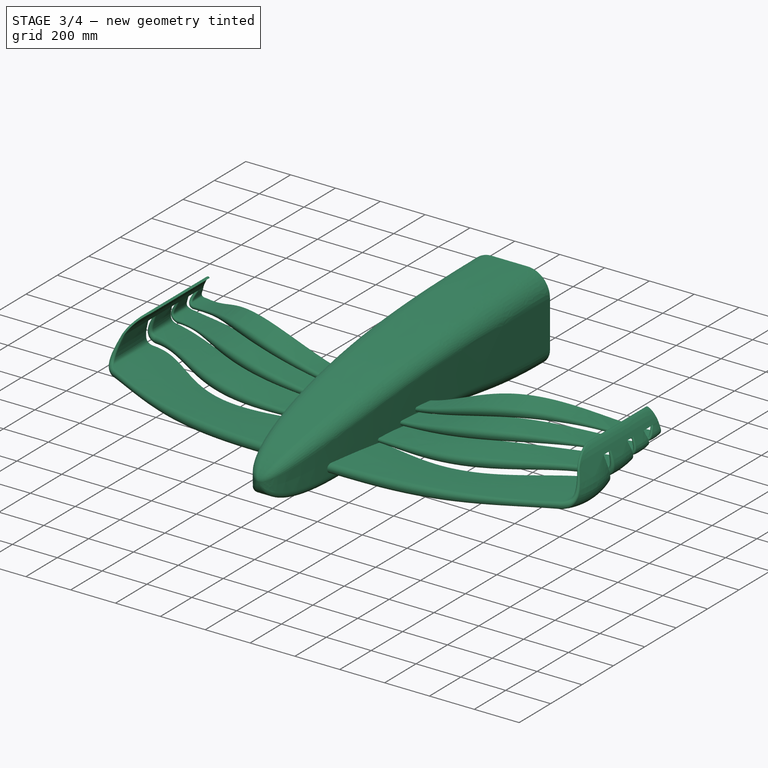
[diagram: stage 3 of 4 — iso view after this stage's code; geometry added in this stage tinted green]
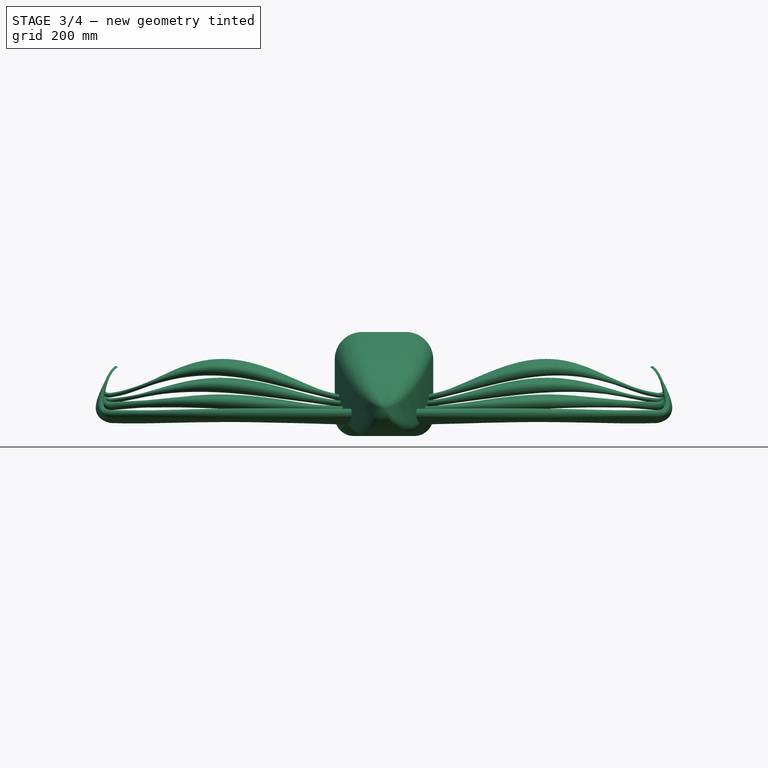
[diagram: stage 3 of 4 — front view after this stage's code; geometry added in this stage tinted green]
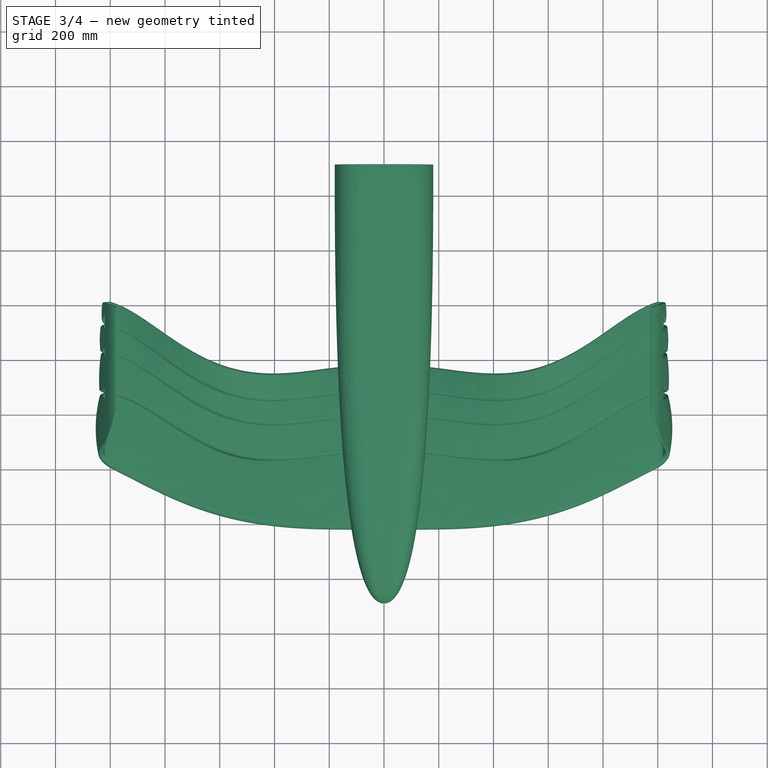
[diagram: stage 3 of 4 — top view after this stage's code; geometry added in this stage tinted green]
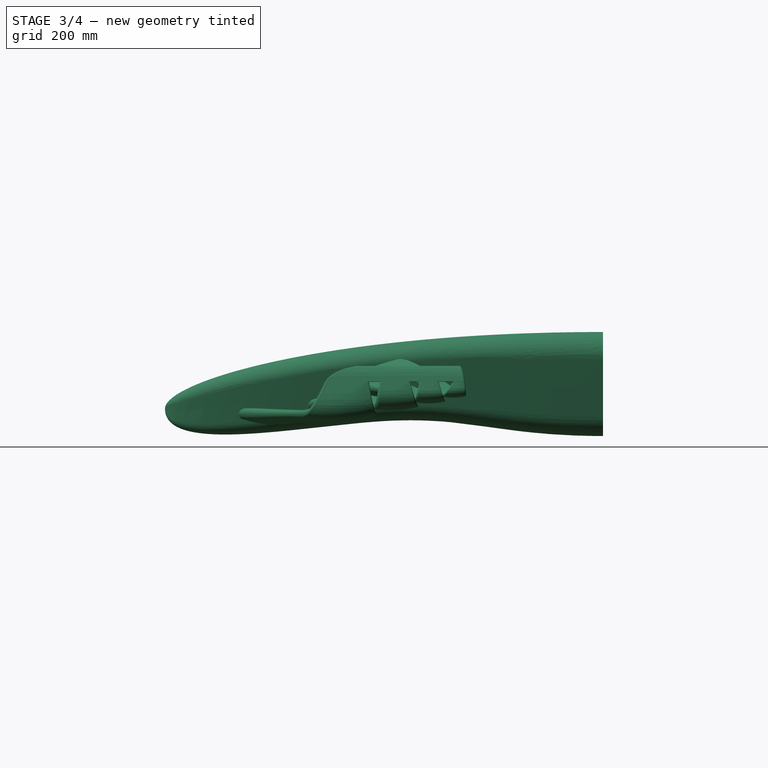
[diagram: stage 3 of 4 — right view after this stage's code; geometry added in this stage tinted green]
FEATURE [Sketcher::SketchObject] Sketch007
  ArcFitTolerance = 1e-06
  AttachmentSupport = -> [XZ_Plane]
  FullyConstrained = true
  MakeInternals = false
  MapMode = 5
  Placement = pos=(0,0,0) rot=(1,0,0;1.5708rad)
  sketch-geometry (2):
    g0: LineSegment StartX=1000 StartY=0 StartZ=0 EndX=985 EndY=115 EndZ=0
    g1: LineSegment [constr] StartX=0 StartY=0 StartZ=0 EndX=985 EndY=115 EndZ=0
  constraints (6):
    c: PointOnObject(g0,g-1)
    c: Coincident(g1,g-1)
    c: Coincident(g1,g0)
    c: DistanceY(g0,g0) = 115
    c: Distance(g0,g-2) = 985
    c: Distance(g0,g-2) = 1000
FEATURE [PartDesign::Plane] DatumPlane005  label="Plane E"
  AttachmentSupport = -> [Sketch007]
  Length = 1867.51
  MapMode = 7
  Placement = pos=(985,2.55e-14,115) rot=(0.706362,0.706362,0.045873;3.04991rad)
  ResizeMode = 0
  Width = 1385.63
FEATURE [PartDesign::Plane] DatumPlane006  label="Plane F"
  AttachmentOffset = pos=(0,0,30) rot=(0,0,1;0rad)
  AttachmentSupport = -> [DatumPlane005]
  Length = 1867.51
  MapMode = 5
  Placement = pos=(981.12,2.92e-14,144.748) rot=(0.06467,-0.06467,-0.995809;1.575rad)
  ResizeMode = 0
  Width = 1385.63
FEATURE [PartDesign::Plane] DatumPlane007  label="Plane G"
  AttachmentOffset = pos=(0,0,30) rot=(1,0,0;0.349066rad)
  AttachmentSupport = -> [DatumPlane006]
  Length = 1869.15
  MapMode = 5
  Placement = pos=(977.24,3.26e-14,174.496) rot=(0.230708,-0.230708,-0.945276;1.62704rad)
  ResizeMode = 0
  Width = 1401.03
FEATURE [Sketcher::SketchObject] Sketch008  label="Element One Top"
  ArcFitTolerance = 1e-06
  AttachmentSupport = -> [DatumPlane005]
  FullyConstrained = true
  MakeInternals = false
  MapMode = 5
  Placement = pos=(985,2.55e-14,115) rot=(0.706362,0.706362,0.045873;3.04991rad)
  sketch-geometry (5):
    g0: LineSegment [constr] StartX=0 StartY=30 StartZ=0 EndX=450 EndY=30 EndZ=0
    g1: ArcOfCircle CenterX=450 CenterY=30 CenterZ=0 NormalX=0 NormalY=0 NormalZ=1 AngleXU=0 Radius=5 StartAngle=4.71239 EndAngle=7.85398
    g2: ArcOfCircle CenterX=300 CenterY=30 CenterZ=0 NormalX=0 NormalY=0 NormalZ=1 AngleXU=0 Radius=5 StartAngle=1.5708 EndAngle=4.71239
    g3: LineSegment StartX=450 StartY=25 StartZ=0 EndX=300 EndY=25 EndZ=0
    g4: LineSegment StartX=450 StartY=35 StartZ=0 EndX=300 EndY=35 EndZ=0
  constraints (13):
    c: PointOnObject(g0,g-2)
    c: Tangent(g1,g3) = 1.5708
    c: Tangent(g1,g4) = -1.5708
    c: Tangent(g2,g3) = 1.5708
    c: Tangent(g2,g4) = -1.5708
    c: Equal(g1,g2)
    c: Horizontal(g4)
    c: Coincident(g1,g0)
    c: PointOnObject(g2,g0)
    c: Radius(g2) = 5
    c: DistanceX(g2,g0) = 150
    c: DistanceX(g-1,g2) = 300
    c: Distance(g-1,g0) = 30
FEATURE [Sketcher::SketchObject] Sketch009  label="Element Two Top"
  ArcFitTolerance = 1e-06
  AttachmentSupport = -> [DatumPlane005]
  FullyConstrained = true
  MakeInternals = false
  MapMode = 5
  Placement = pos=(985,2.55e-14,115) rot=(0.706362,0.706362,0.045873;3.04991rad)
  sketch-geometry (5):
    g0: LineSegment [constr] StartX=0 StartY=30 StartZ=0 EndX=600 EndY=30 EndZ=0
    g1: ArcOfCircle CenterX=600 CenterY=30 CenterZ=0 NormalX=0 NormalY=0 NormalZ=1 AngleXU=0 Radius=5 StartAngle=4.71239 EndAngle=7.85398
    g2: ArcOfCircle CenterX=500 CenterY=30 CenterZ=0 NormalX=0 NormalY=0 NormalZ=1 AngleXU=0 Radius=5 StartAngle=1.5708 EndAngle=4.71239
    g3: LineSegment StartX=600 StartY=25 StartZ=0 EndX=500 EndY=25 EndZ=0
    g4: LineSegment StartX=600 StartY=35 StartZ=0 EndX=500 EndY=35 EndZ=0
  constraints (13):
    c: PointOnObject(g0,g-2)
    c: Tangent(g1,g3) = 1.5708
    c: Tangent(g1,g4) = -1.5708
    c: Tangent(g2,g3) = 1.5708
    c: Tangent(g2,g4) = -1.5708
    c: Equal(g1,g2)
    c: Horizontal(g4)
    c: Coincident(g1,g0)
    c: PointOnObject(g2,g0)
    c: Radius(g2) = 5
    c: DistanceX(g2,g0) = 100
    c: DistanceX(g-1,g2) = 500
    c: Distance(g-1,g0) = 30
FEATURE [Sketcher::SketchObject] Sketch010  label="Element Three Top"
  ArcFitTolerance = 1e-06
  AttachmentSupport = -> [DatumPlane005]
  FullyConstrained = true
  MakeInternals = false
  MapMode = 5
  Placement = pos=(985,2.55e-14,115) rot=(0.706362,0.706362,0.045873;3.04991rad)
  sketch-geometry (5):
    g0: LineSegment [constr] StartX=0 StartY=30 StartZ=0 EndX=705 EndY=30 EndZ=0
    g1: ArcOfCircle CenterX=705 CenterY=30 CenterZ=0 NormalX=0 NormalY=0 NormalZ=1 AngleXU=0 Radius=5 StartAngle=4.71239 EndAngle=7.85398
    g2: ArcOfCircle CenterX=645 CenterY=30 CenterZ=0 NormalX=0 NormalY=0 NormalZ=1 AngleXU=0 Radius=5 StartAngle=1.5708 EndAngle=4.71239
    g3: LineSegment StartX=705 StartY=25 StartZ=0 EndX=645 EndY=25 EndZ=0
    g4: LineSegment StartX=705 StartY=35 StartZ=0 EndX=645 EndY=35 EndZ=0
  constraints (13):
    c: PointOnObject(g0,g-2)
    c: Tangent(g1,g3) = 1.5708
    c: Tangent(g1,g4) = -1.5708
    c: Tangent(g2,g3) = 1.5708
    c: Tangent(g2,g4) = -1.5708
    c: Equal(g1,g2)
    c: Horizontal(g4)
    c: Coincident(g1,g0)
    c: PointOnObject(g2,g0)
    c: Radius(g2) = 5
    c: DistanceX(g2,g0) = 60
    c: DistanceX(g-1,g2) = 645
    c: Distance(g-1,g0) = 30
FEATURE [Sketcher::SketchObject] Sketch011  label="Element Four Top"
  ArcFitTolerance = 1e-06
  AttachmentSupport = -> [DatumPlane005]
  FullyConstrained = true
  MakeInternals = false
  MapMode = 5
  Placement = pos=(985,2.55e-14,115) rot=(0.706362,0.706362,0.045873;3.04991rad)
  sketch-geometry (5):
    g0: LineSegment [constr] StartX=0 StartY=30 StartZ=0 EndX=800 EndY=30 EndZ=0
    g1: ArcOfCircle CenterX=800 CenterY=30 CenterZ=0 NormalX=0 NormalY=0 NormalZ=1 AngleXU=0 Radius=5 StartAngle=4.71239 EndAngle=7.85398
    g2: ArcOfCircle CenterX=770 CenterY=30 CenterZ=0 NormalX=0 NormalY=0 NormalZ=1 AngleXU=0 Radius=5 StartAngle=1.5708 EndAngle=4.71239
    g3: LineSegment StartX=800 StartY=25 StartZ=0 EndX=770 EndY=25 EndZ=0
    g4: LineSegment StartX=800 StartY=35 StartZ=0 EndX=770 EndY=35 EndZ=0
  constraints (13):
    c: PointOnObject(g0,g-2)
    c: Tangent(g1,g3) = 1.5708
    c: Tangent(g1,g4) = -1.5708
    c: Tangent(g2,g3) = 1.5708
    c: Tangent(g2,g4) = -1.5708
    c: Equal(g1,g2)
    c: Horizontal(g4)
    c: Coincident(g1,g0)
    c: PointOnObject(g2,g0)
    c: Radius(g2) = 5
    c: DistanceX(g2,g0) = 30
    c: DistanceX(g-1,g2) = 770
    c: Distance(g-1,g0) = 30
FEATURE [PartDesign::Plane] DatumPlane008  label="Plane H"
  AttachmentSupport = -> [Sketch008]
  Length = 1206.04
  MapMode = 45
  Placement = pos=(1019.71,375,119.527) rot=(0,0.707107,0.707107;3.14159rad)
  ResizeMode = 0
  Width = 508.008
FEATURE [PartDesign::Plane] DatumPlane009  label="Plane I"
  AttachmentSupport = -> [Sketch009]
  Length = 1206.04
  MapMode = 45
  Placement = pos=(1019.71,550,119.527) rot=(0,0.707107,0.707107;3.14159rad)
  ResizeMode = 0
  Width = 508.008
FEATURE [PartDesign::Plane] DatumPlane010  label="Plane J"
  AttachmentSupport = -> [Sketch010]
  Length = 1206.04
  MapMode = 45
  Placement = pos=(1019.71,675,119.527) rot=(0,0.707107,0.707107;3.14159rad)
  ResizeMode = 0
  Width = 508.008
FEATURE [PartDesign::Plane] DatumPlane011  label="Plane K"
  AttachmentSupport = -> [Sketch011]
  Length = 1206.04
  MapMode = 45
  Placement = pos=(1019.71,785,119.527) rot=(0,0.707107,0.707107;3.14159rad)
  ResizeMode = 0
  Width = 508.008
FEATURE [Sketcher::SketchObject] Sketch012  label="Guide Element 1"
  ArcFitTolerance = 1e-06
  AttachmentSupport = -> [DatumPlane008]
  ExternalGeometry = -> [Sketch008,AdditiveLoft]
  FullyConstrained = true
  MakeInternals = false
  MapMode = 5
  Placement = pos=(1019.71,375,119.527) rot=(0,0.707107,0.707107;3.14159rad)
  sketch-geometry (7):
    g0-g3: Circle [constr] x4 (B-spline internal-alignment scaffolding for g4; pole/knot coordinates omitted)
    g4: BSplineCurve PolesCount=4 KnotsCount=2 Degree=3 IsPeriodic=0
    g5: GeomPoint [constr] X=5 Y=-0.652174 Z=0
    g6: GeomPoint [constr] X=19.706 Y=-130 Z=0
  constraints (15):
    c: Weight(g0) = 1
    c: Equal(g0,g1)
    c: Equal(g0,g2)
    c: Equal(g0,g3)
    c: InternalAlignment(g0-g3 -> g4) x4
    c: InternalAlignment(g5,g4)
    c: InternalAlignment(g6,g4)
    c: PointOnObject(g4,g-3)
    c: Distance(g4,g-2) = 5
    c: PointOnObject(g4,g-4)
    c: DistanceY(g4,g2) = 10
    c: DistanceX(g2,g4) = 60
    c: DistanceX(g1,g4) = 40
    c: DistanceY(g4,g-1) = 130
    c: DistanceY(g4,g1) = 65
FEATURE [Sketcher::SketchObject] Sketch013  label="Guide Element 2"
  ArcFitTolerance = 1e-06
  AttachmentSupport = -> [DatumPlane009]
  ExternalGeometry = -> [Sketch009,AdditiveLoft]
  FullyConstrained = true
  MakeInternals = false
  MapMode = 5
  Placement = pos=(1019.71,550,119.527) rot=(0,0.707107,0.707107;3.14159rad)
  sketch-geometry (7):
    g0-g3: Circle [constr] x4 (B-spline internal-alignment scaffolding for g4; pole/knot coordinates omitted)
    g4: BSplineCurve PolesCount=4 KnotsCount=2 Degree=3 IsPeriodic=0
    g5: GeomPoint [constr] X=5 Y=-0.652174 Z=0
    g6: GeomPoint [constr] X=19.706 Y=-90 Z=0
  constraints (15):
    c: Weight(g0) = 1
    c: Equal(g0,g1)
    c: Equal(g0,g2)
    c: Equal(g0,g3)
    c: InternalAlignment(g0-g3 -> g4) x4
    c: InternalAlignment(g5,g4)
    c: InternalAlignment(g6,g4)
    c: PointOnObject(g4,g-4)
    c: DistanceX(g2,g4) = 50
    c: DistanceY(g4,g2) = 10
    c: DistanceY(g4,g-1) = 90
    c: DistanceY(g4,g1) = 60
    c: DistanceX(g1,g4) = 25
    c: PointOnObject(g4,g-3)
    c: DistanceX(g-1,g4) = 5
FEATURE [Sketcher::SketchObject] Sketch014  label="Guide Element 3"
  ArcFitTolerance = 1e-06
  AttachmentSupport = -> [DatumPlane010]
  ExternalGeometry = -> [Sketch010,AdditiveLoft]
  FullyConstrained = true
  MakeInternals = false
  MapMode = 5
  Placement = pos=(1019.71,675,119.527) rot=(0,0.707107,0.707107;3.14159rad)
  sketch-geometry (7):
    g0-g3: Circle [constr] x4 (B-spline internal-alignment scaffolding for g4; pole/knot coordinates omitted)
    g4: BSplineCurve PolesCount=4 KnotsCount=2 Degree=3 IsPeriodic=0
    g5: GeomPoint [constr] X=5 Y=-0.652174 Z=0
    g6: GeomPoint [constr] X=19.706 Y=-69 Z=0
  constraints (15):
    c: Weight(g0) = 1
    c: Equal(g0,g1)
    c: Equal(g0,g2)
    c: Equal(g0,g3)
    c: InternalAlignment(g0-g3 -> g4) x4
    c: InternalAlignment(g5,g4)
    c: InternalAlignment(g6,g4)
    c: PointOnObject(g4,g-3)
    c: PointOnObject(g4,g-4)
    c: DistanceX(g2,g4) = 50
    c: DistanceY(g4,g2) = 10
    c: DistanceY(g4,g-1) = 69
    c: DistanceX(g1,g4) = 25
    c: DistanceY(g1,g4) = 30
    c: DistanceX(g-1,g4) = 5
FEATURE [Sketcher::SketchObject] Sketch016  label="Guide Element 4"
  ArcFitTolerance = 1e-06
  AttachmentSupport = -> [DatumPlane011]
  ExternalGeometry = -> [Sketch011,AdditiveLoft]
  FullyConstrained = true
  MakeInternals = false
  MapMode = 5
  Placement = pos=(1019.71,785,119.527) rot=(0,0.707107,0.707107;3.14159rad)
  sketch-geometry (7):
    g0-g3: Circle [constr] x4 (B-spline internal-alignment scaffolding for g4; pole/knot coordinates omitted)
    g4: BSplineCurve PolesCount=4 KnotsCount=2 Degree=3 IsPeriodic=0
    g5: GeomPoint [constr] X=5 Y=-0.652174 Z=0
    g6: GeomPoint [constr] X=19.706 Y=-50 Z=0
  constraints (15):
    c: Weight(g0) = 1
    c: Equal(g0,g1)
    c: Equal(g0,g2)
    c: Equal(g0,g3)
    c: InternalAlignment(g0-g3 -> g4) x4
    c: InternalAlignment(g5,g4)
    c: InternalAlignment(g6,g4)
    c: PointOnObject(g4,g-3)
    c: PointOnObject(g4,g-4)
    c: DistanceX(g2,g4) = 43
    c: DistanceY(g2,g-1) = 50
    c: DistanceY(g1,g-1) = 15
    c: DistanceX(g1,g4) = 1.5
    c: DistanceX(g-1,g4) = 5
    c: DistanceY(g4,g-1) = 50
FEATURE [Sketcher::SketchObject] Sketch017  label="Element 1"
  ArcFitTolerance = 1e-06
  AttachmentSupport = -> [DatumPlane003]
  ExternalGeometry = -> [AdditiveLoft]
  FullyConstrained = false
  MakeInternals = false
  MapMode = 5
  Placement = pos=(1000,0,0) rot=(0.57735,0.57735,0.57735;2.0944rad)
  sketch-geometry (4):
    g0: BSplineCurve PolesCount=8 KnotsCount=2 Degree=7 IsPeriodic=0
    g1: BSplineCurve PolesCount=3 KnotsCount=2 Degree=2 IsPeriodic=0
    g2: BSplineCurve PolesCount=3 KnotsCount=2 Degree=2 IsPeriodic=0
    g3: BSplineCurve PolesCount=9 KnotsCount=2 Degree=8 IsPeriodic=0
FEATURE [Sketcher::SketchObject] Sketch018  label="Element 2"
  ArcFitTolerance = 1e-06
  AttachmentSupport = -> [DatumPlane003]
  ExternalGeometry = -> [AdditiveLoft]
  FullyConstrained = false
  MakeInternals = false
  MapMode = 5
  Placement = pos=(1000,0,0) rot=(0.57735,0.57735,0.57735;2.0944rad)
  sketch-geometry (4):
    g0: BSplineCurve PolesCount=5 KnotsCount=3 Degree=2 IsPeriodic=0
    g1: BSplineCurve PolesCount=3 KnotsCount=2 Degree=2 IsPeriodic=0
    g2: BSplineCurve PolesCount=5 KnotsCount=3 Degree=2 IsPeriodic=0
    g3: BSplineCurve PolesCount=3 KnotsCount=2 Degree=2 IsPeriodic=0
FEATURE [Sketcher::SketchObject] Sketch019  label="Element 3"
  ArcFitTolerance = 1e-06
  AttachmentSupport = -> [DatumPlane003]
  ExternalGeometry = -> [AdditiveLoft]
  FullyConstrained = false
  MakeInternals = false
  MapMode = 5
  Placement = pos=(1000,0,0) rot=(0.57735,0.57735,0.57735;2.0944rad)
  sketch-geometry (4):
    g0: BSplineCurve PolesCount=8 KnotsCount=2 Degree=7 IsPeriodic=0
    g1: BSplineCurve PolesCount=3 KnotsCount=2 Degree=2 IsPeriodic=0
    g2: BSplineCurve PolesCount=5 KnotsCount=3 Degree=2 IsPeriodic=0
    g3: BSplineCurve PolesCount=3 KnotsCount=2 Degree=2 IsPeriodic=0
FEATURE [Sketcher::SketchObject] Sketch020  label="Element 4"
  ArcFitTolerance = 1e-06
  AttachmentSupport = -> [DatumPlane003]
  ExternalGeometry = -> [AdditiveLoft]
  FullyConstrained = false
  MakeInternals = false
  MapMode = 5
  Placement = pos=(1000,0,0) rot=(0.57735,0.57735,0.57735;2.0944rad)
  sketch-geometry (4):
    g0: BSplineCurve PolesCount=8 KnotsCount=2 Degree=7 IsPeriodic=0
    g1: BSplineCurve PolesCount=3 KnotsCount=2 Degree=2 IsPeriodic=0
    g2: BSplineCurve PolesCount=9 KnotsCount=2 Degree=8 IsPeriodic=0
    g3: BSplineCurve PolesCount=3 KnotsCount=2 Degree=2 IsPeriodic=0
FEATURE [PartDesign::AdditivePipe] AdditivePipe
  AuxilleryCurvelinear = true
  AuxillerySpineTangent = false
  BaseFeature = -> Pad
  Binormal = (0,0,0)
  Mode = 0
  Placement = pos=(0,0,0) rot=(1,1,1;2.0944rad)
  Profile = -> Sketch017
  Refine = true
  Sections = -> [Sketch008]
  Spine = -> Sketch012 [Edge1]
  SpineTangent = false
  Suppressed = false
  Transformation = 1
  Transition = 0
FEATURE [PartDesign::AdditivePipe] AdditivePipe001
  AuxilleryCurvelinear = true
  AuxillerySpineTangent = false
  BaseFeature = -> AdditivePipe
  Binormal = (0,0,0)
  Mode = 0
  Placement = pos=(0,0,0) rot=(1,1,1;2.0944rad)
  Profile = -> Sketch018
  Refine = true
  Sections = -> [Sketch009]
  Spine = -> Sketch013 [Edge1]
  SpineTangent = false
  Suppressed = false
  Transformation = 1
  Transition = 0
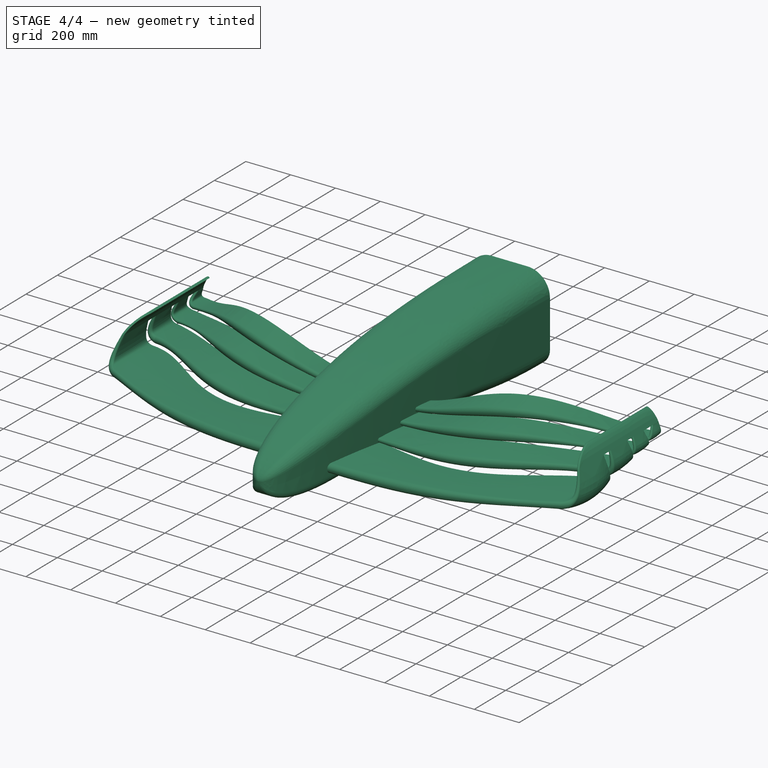
[diagram: stage 4 of 4 — iso view after this stage's code; geometry added in this stage tinted green]
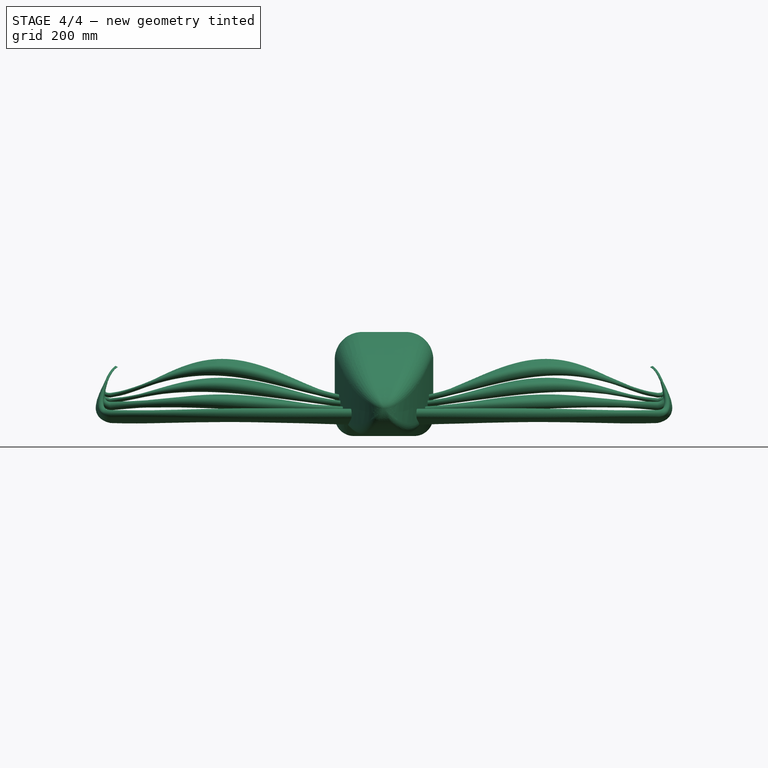
[diagram: stage 4 of 4 — front view after this stage's code; geometry added in this stage tinted green]
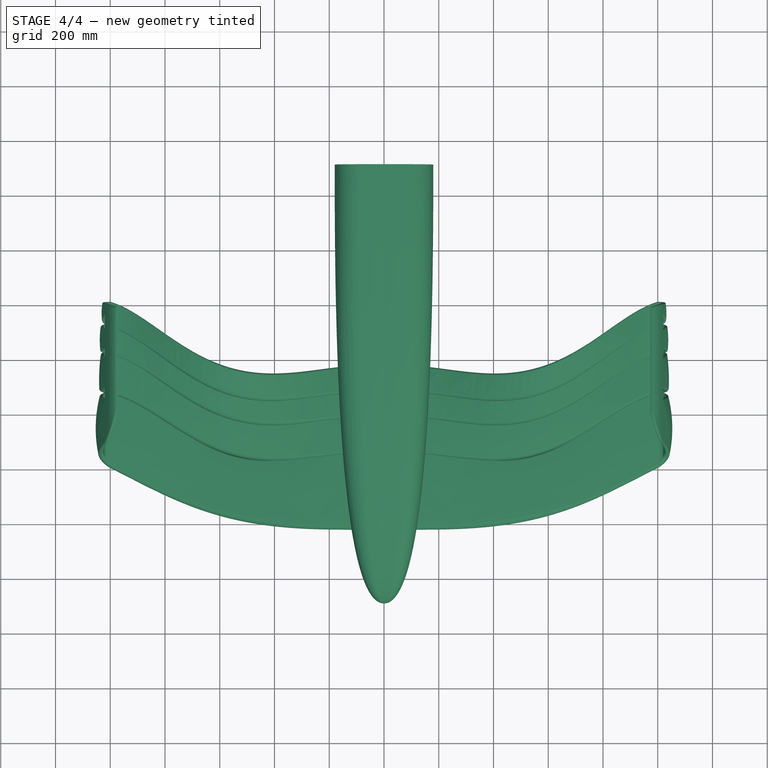
[diagram: stage 4 of 4 — top view after this stage's code; geometry added in this stage tinted green]
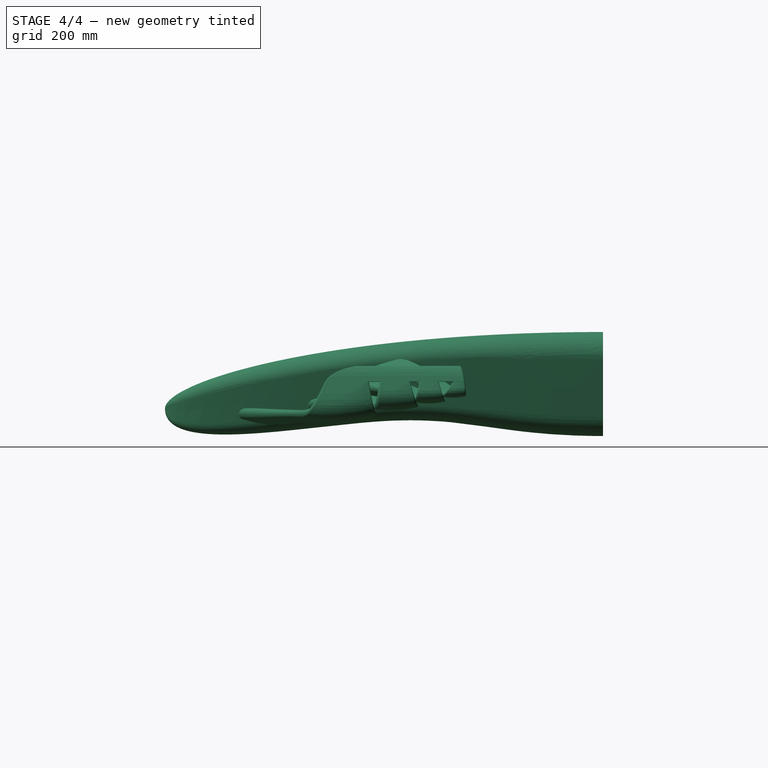
[diagram: stage 4 of 4 — right view after this stage's code; geometry added in this stage tinted green]
FEATURE [PartDesign::AdditivePipe] AdditivePipe002
  AuxilleryCurvelinear = true
  AuxillerySpineTangent = false
  BaseFeature = -> AdditivePipe001
  Binormal = (0,0,0)
  Mode = 0
  Placement = pos=(0,0,0) rot=(1,1,1;2.0944rad)
  Profile = -> Sketch019
  Refine = true
  Sections = -> [Sketch010]
  Spine = -> Sketch014 [Edge1]
  SpineTangent = false
  Suppressed = false
  Transformation = 1
  Transition = 0
FEATURE [PartDesign::AdditivePipe] AdditivePipe003
  AuxilleryCurvelinear = true
  AuxillerySpineTangent = false
  BaseFeature = -> AdditivePipe002
  Binormal = (0,0,0)
  Mode = 0
  Placement = pos=(0,0,0) rot=(1,1,1;2.0944rad)
  Profile = -> Sketch020
  Refine = true
  Sections = -> [Sketch011]
  Spine = -> Sketch016 [Edge1]
  SpineTangent = false
  Suppressed = false
  Transformation = 1
  Transition = 0
FEATURE [Sketcher::SketchObject] Sketch022  label="Slot F"
  ArcFitTolerance = 1e-06
  AttachmentSupport = -> [DatumPlane005]
  ExternalGeometry = -> [AdditivePipe003]
  FullyConstrained = true
  MakeInternals = false
  MapMode = 5
  Placement = pos=(985,2.55e-14,115) rot=(0.706362,0.706362,0.045873;3.04991rad)
  sketch-geometry (4):
    g0: ArcOfCircle CenterX=800 CenterY=30 CenterZ=0 NormalX=0 NormalY=0 NormalZ=1 AngleXU=0 Radius=5 StartAngle=4.71239 EndAngle=7.85398
    g1: ArcOfCircle CenterX=300 CenterY=30 CenterZ=0 NormalX=0 NormalY=0 NormalZ=1 AngleXU=0 Radius=5 StartAngle=1.5708 EndAngle=4.71239
    g2: LineSegment StartX=800 StartY=25 StartZ=0 EndX=300 EndY=25 EndZ=0
    g3: LineSegment StartX=800 StartY=35 StartZ=0 EndX=300 EndY=35 EndZ=0
  constraints (8):
    c: Tangent(g0,g2) = 1.5708
    c: Tangent(g0,g3) = -1.5708
    c: Tangent(g1,g2) = 1.5708
    c: Tangent(g1,g3) = -1.5708
    c: Equal(g0,g1)
    c: DistanceY(g1,g1) = 5
    c: Coincident(g1,g-3)
    c: Coincident(g0,g-4)
FEATURE [Sketcher::SketchObject] Sketch021  label="Slot E"
  ArcFitTolerance = 1e-06
  AttachmentSupport = -> [DatumPlane006]
  ExternalGeometry = -> [Sketch022]
  FullyConstrained = true
  MakeInternals = false
  MapMode = 5
  Placement = pos=(981.12,2.92e-14,144.748) rot=(0.06467,-0.06467,-0.995809;1.575rad)
  sketch-geometry (4):
    g0: ArcOfCircle CenterX=-795 CenterY=20 CenterZ=0 NormalX=0 NormalY=0 NormalZ=1 AngleXU=0 Radius=5 StartAngle=1.5708 EndAngle=4.71239
    g1: ArcOfCircle CenterX=-330 CenterY=20 CenterZ=0 NormalX=0 NormalY=0 NormalZ=1 AngleXU=0 Radius=5 StartAngle=4.71239 EndAngle=7.85398
    g2: LineSegment StartX=-795 StartY=25 StartZ=0 EndX=-330 EndY=25 EndZ=0
    g3: LineSegment StartX=-795 StartY=15 StartZ=0 EndX=-330 EndY=15 EndZ=0
  constraints (10):
    c: Tangent(g0,g2) = 1.5708
    c: Tangent(g0,g3) = -1.5708
    c: Tangent(g1,g2) = 1.5708
    c: Tangent(g1,g3) = -1.5708
    c: Equal(g0,g1)
    c: Horizontal(g2)
    c: DistanceY(g0,g0) = 5
    c: DistanceX(g1,g-3) = 30
    c: DistanceX(g-3,g0) = 5
    c: PointOnObject(g1,g-3)
FEATURE [Sketcher::SketchObject] Sketch023  label="Slot G"
  ArcFitTolerance = 1e-06
  AttachmentSupport = -> [DatumPlane007]
  ExternalGeometry = -> [Sketch021]
  FullyConstrained = true
  MakeInternals = false
  MapMode = 5
  Placement = pos=(977.24,3.26e-14,174.496) rot=(0.230708,-0.230708,-0.945276;1.62704rad)
  sketch-geometry (4):
    g0: ArcOfCircle CenterX=-785 CenterY=-1.16521 CenterZ=0 NormalX=0 NormalY=0 NormalZ=1 AngleXU=0 Radius=5 StartAngle=1.5708 EndAngle=4.71239
    g1: ArcOfCircle CenterX=-410 CenterY=-1.16521 CenterZ=0 NormalX=0 NormalY=0 NormalZ=1 AngleXU=0 Radius=5 StartAngle=4.71239 EndAngle=7.85398
    g2: LineSegment StartX=-785 StartY=3.83479 StartZ=0 EndX=-410 EndY=3.83479 EndZ=0
    g3: LineSegment StartX=-785 StartY=-6.16521 StartZ=0 EndX=-410 EndY=-6.16521 EndZ=0
  constraints (10):
    c: Tangent(g0,g2) = 1.5708
    c: Tangent(g0,g3) = -1.5708
    c: Tangent(g1,g2) = 1.5708
    c: Tangent(g1,g3) = -1.5708
    c: Equal(g0,g1)
    c: Horizontal(g2)
    c: Distance(g0,g2) = 5
    c: DistanceX(g1,g-3) = 80
    c: DistanceX(g-3,g0) = 10
    c: PointOnObject(g0,g-3)
FEATURE [PartDesign::AdditiveLoft] AdditiveLoft001
  BaseFeature = -> AdditivePipe003
  Closed = false
  Placement = pos=(0,0,0) rot=(1,1,1;2.0944rad)
  Profile = -> Sketch022
  Refine = true
  Ruled = false
  Sections = -> [Sketch021,Sketch023]
  Suppressed = false
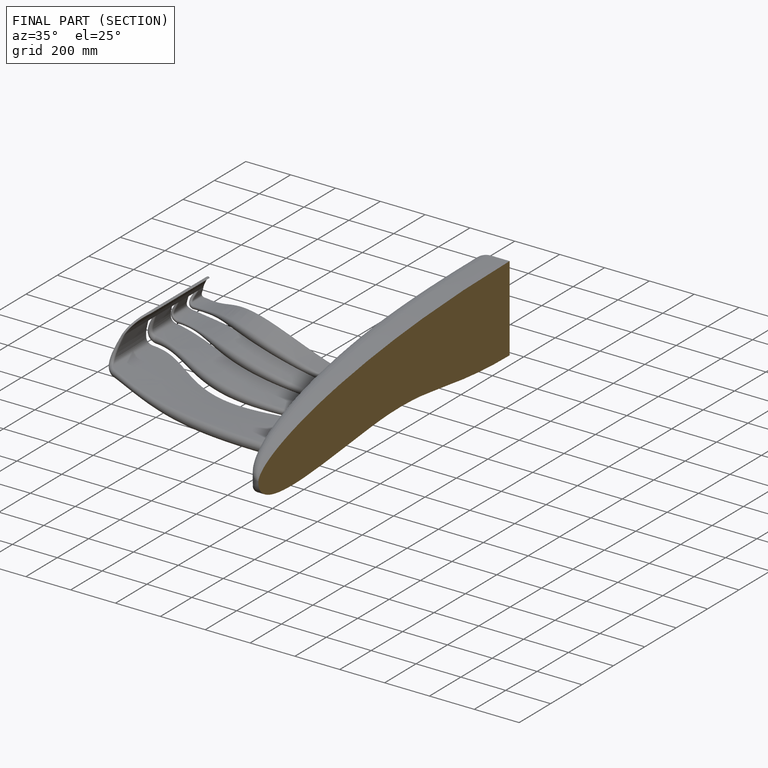
[diagram: finished part — half-section view (interior)]
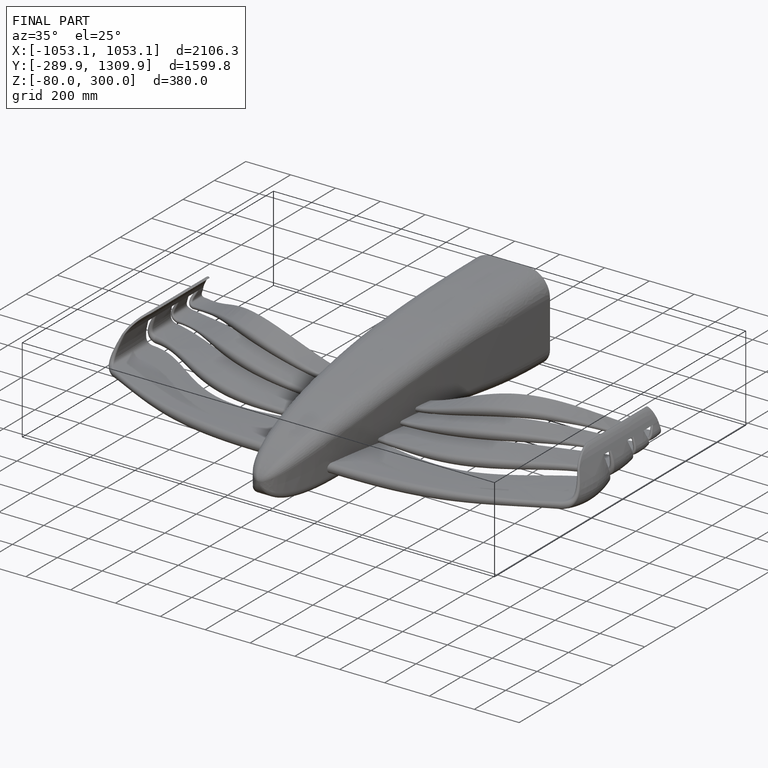
[diagram: finished part — iso view with bounding-box wireframe]
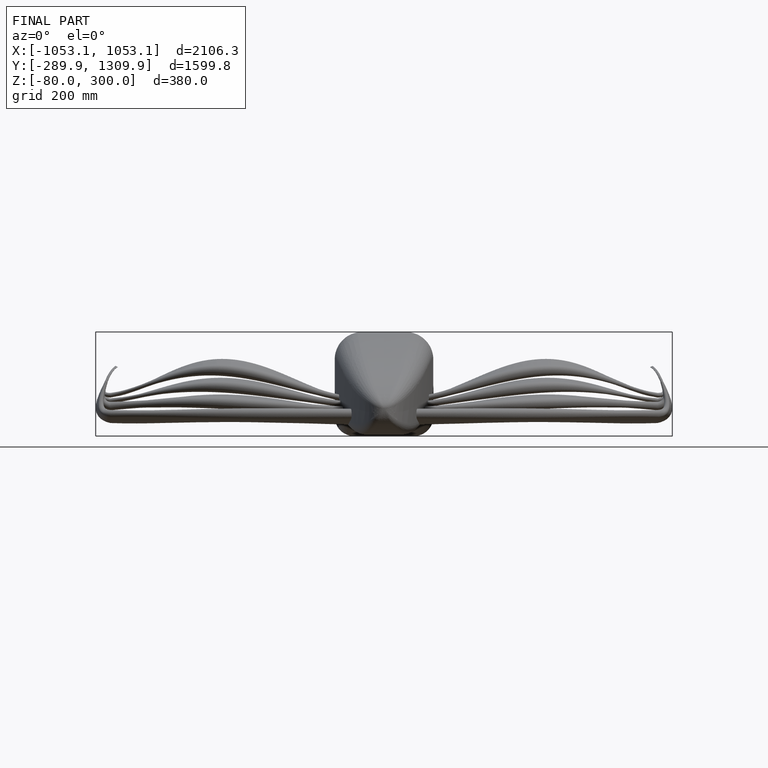
[diagram: finished part — front view with bounding-box wireframe]
